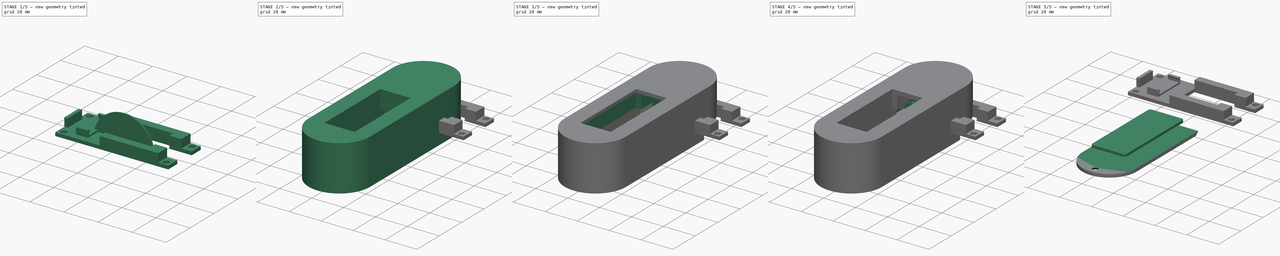
[diagram: build sequence overview — one tinted view per stage of 5, left to right]
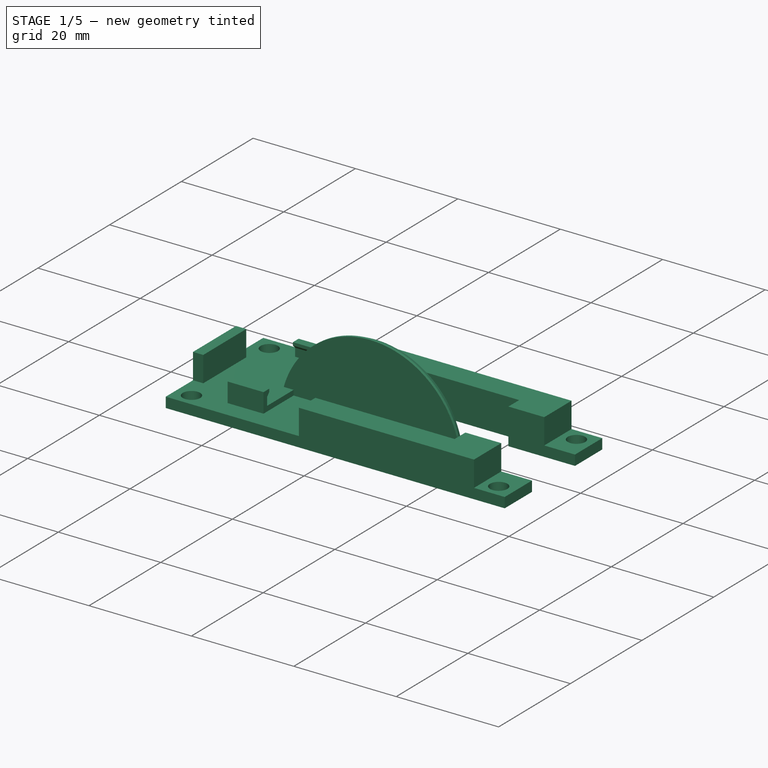
[diagram: stage 1 of 5 — iso view after this stage's code; geometry added in this stage tinted green]
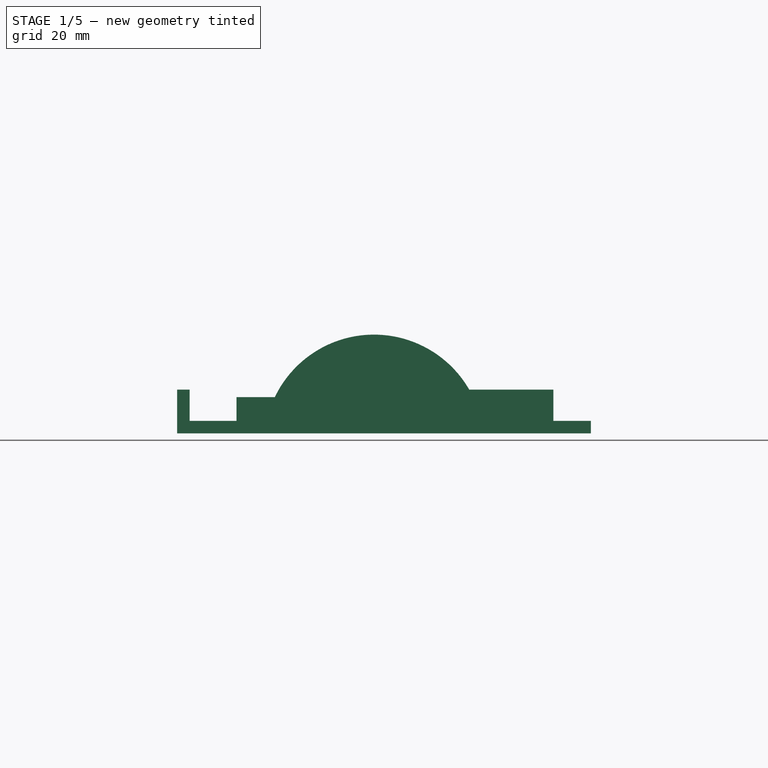
[diagram: stage 1 of 5 — front view after this stage's code; geometry added in this stage tinted green]
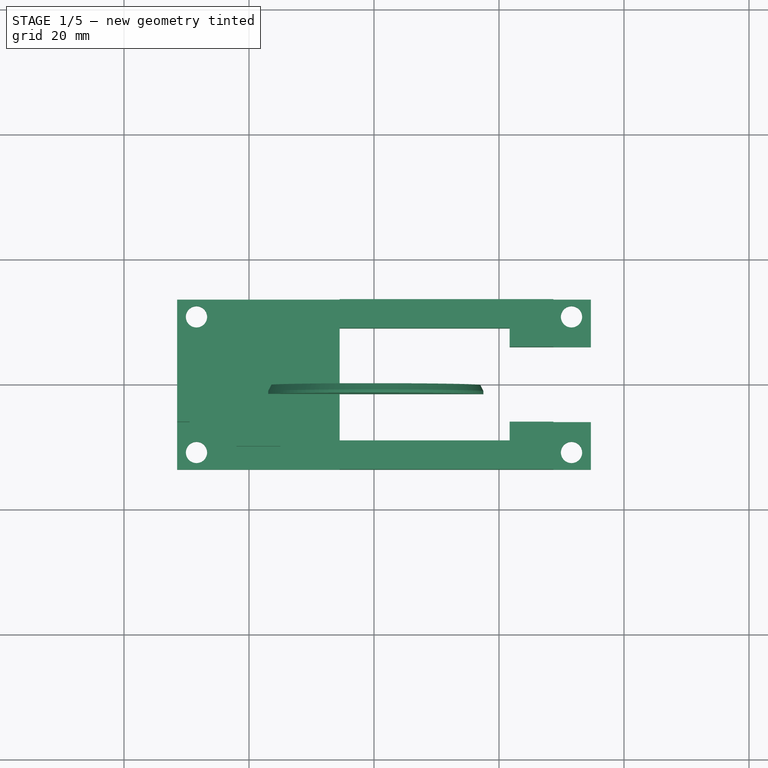
[diagram: stage 1 of 5 — top view after this stage's code; geometry added in this stage tinted green]
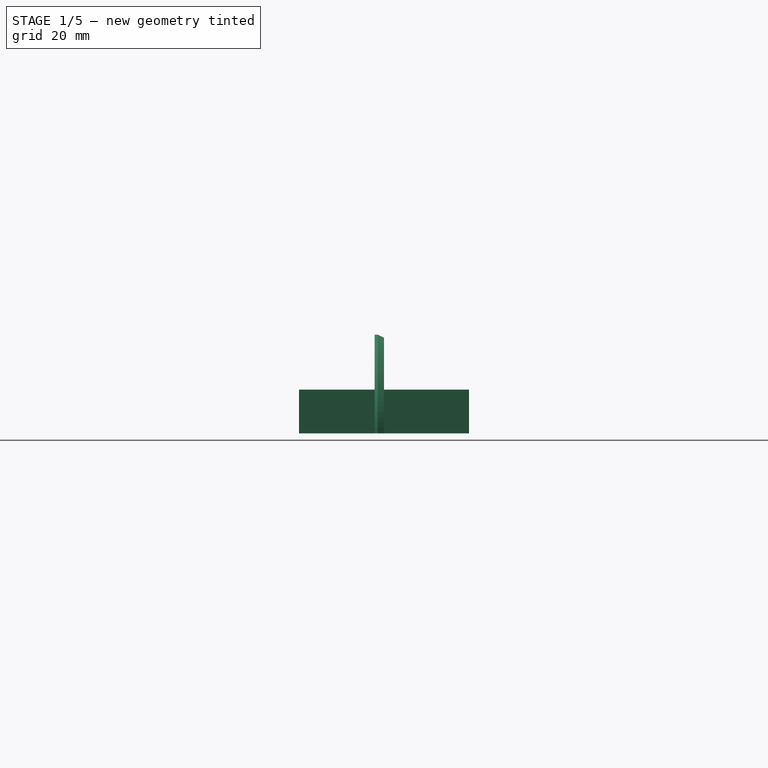
[diagram: stage 1 of 5 — right view after this stage's code; geometry added in this stage tinted green]
FCSTD DOCUMENT  (FreeCAD 1.0R39319 (Git))
Label: Brennstuhl_WallPlug
License: All rights reserved
LicenseURL: https://en.wikipedia.org/wiki/All_rights_reserved
objects: Sketcher::SketchObject×25, PartDesign::Pocket×12, PartDesign::Pad×9, PartDesign::SubShapeBinder×6, PartDesign::Body×5, PartDesign::Plane×4, PartDesign::Hole×4, PartDesign::Chamfer×2, PartDesign::Mirrored×1, Spreadsheet::Sheet×1, Measure::MeasureDistance×1, App::DocumentObjectGroup×1
note: 148 computed .brp shape members not serialized (recipe doc carries the construction recipe); baked Part::Feature solids carry a one-line shape summary decoded from their .brp

FEATURE [Sketcher::SketchObject] Sketch
  ArcFitTolerance = 1e-06
  AttachmentSupport = -> [XZ_Plane]
  FullyConstrained = true
  MakeInternals = false
  MapMode = 5
  Placement = pos=(0,0,0) rot=(1,0,0;1.5708rad)
  expr: Constraints[3] = <<config>>.bridge_clamp_diam
  expr: Constraints[5] = <<config>>.bridge_clamp_height
  sketch-geometry (3):
    g0: ArcOfCircle CenterX=0 CenterY=-1.79146 CenterZ=0 NormalX=0 NormalY=0 NormalZ=1 AngleXU=0 Radius=17.5915 StartAngle=0.102014 EndAngle=3.03958
    g1: GeomPoint X=0 Y=15.8 Z=0
    g2: LineSegment StartX=-17.5 StartY=1.157e-13 StartZ=0 EndX=17.5 EndY=1.177e-13 EndZ=0
  constraints (9):
    c: PointOnObject(g0,g-1)
    c: PointOnObject(g0,g-2)
    c: PointOnObject(g0,g-1)
    c: DistanceX(g0,g0) = 35
    c: PointOnObject(g1,g-2)
    c: DistanceY(g-1,g1) = 15.8
    c: PointOnObject(g1,g0)
    c: Coincident(g2,g0)
    c: Coincident(g2,g0)
FEATURE [PartDesign::Pad] Pad
  Direction = (0,-1,2e-16)
  Length = 1.5
  Length2 = 10
  Placement = pos=(0,0,0) rot=(1,0,0;1.5708rad)
  Profile = -> Sketch
  ReferenceAxis = -> Sketch [N_Axis]
  Refine = true
  Suppressed = false
  Type = 0
  expr: Length = <<config>>.bridge_thickness / 2
FEATURE [PartDesign::Chamfer] Chamfer
  Angle = 45
  Base = -> Pad [Edge3]
  BaseFeature = -> Pad
  ChamferType = 1
  FlipDirection = false
  Placement = pos=(0,0,0) rot=(1,0,0;1.5708rad)
  Refine = true
  Size = 1
  Size2 = 0.5
  SupportTransform = false
  Suppressed = false
  UseAllEdges = false
FEATURE [PartDesign::Body] Body003  label="AcrylBody"
  AllowCompound = false
  Group = -> [Binder004,Sketch021,Pad004]
  Origin = -> Origin003
  Tip = -> Pad004
FEATURE [Measure::MeasureDistance] Distance  label="Distance: 28,50 mm"
  Distance = 28.5
  DistanceX = 0
  DistanceY = 0
  DistanceZ = 28.5
  Element1 = -> Body001 [Chamfer001.Vertex73]
  Element2 = -> Body001 [Chamfer001.Vertex31]
  Position1 = (18.25,-75.1,21.5)
  Position2 = (18.25,-75.1,-7)
FEATURE [App::DocumentObjectGroup] Measurements
  Group = -> [Distance]
FEATURE [PartDesign::SubShapeBinder] Binder005
  BindCopyOnChange = 0
  BindMode = 0
  ClaimChildren = false
  Context = -> Body004 [Binder005.]
  Fuse = false
  MakeFace = true
  OffsetFill = false
  OffsetIntersection = false
  OffsetJoinType = 0
  OffsetOpenResult = false
  PartialLoad = false
  Refine = true
  Relative = true
  Support = -> [Sketch003]
  _Version = 2
FEATURE [Sketcher::SketchObject] Sketch022
  ArcFitTolerance = 1e-06
  AttachmentSupport = -> [XY_Plane004]
  ExternalGeometry = -> [Binder005]
  FullyConstrained = true
  MakeInternals = false
  MapMode = 5
  sketch-geometry (18):
    g0: Circle CenterX=31.6 CenterY=10.85 CenterZ=0 NormalX=0 NormalY=0 NormalZ=1 AngleXU=0 Radius=1.7
    g1: Circle CenterX=31.6 CenterY=-10.85 CenterZ=0 NormalX=0 NormalY=0 NormalZ=1 AngleXU=0 Radius=1.7
    g2: Circle CenterX=-28.4 CenterY=10.85 CenterZ=0 NormalX=0 NormalY=0 NormalZ=1 AngleXU=0 Radius=1.7
    g3: Circle CenterX=-28.4 CenterY=-10.85 CenterZ=0 NormalX=0 NormalY=0 NormalZ=1 AngleXU=0 Radius=1.7
    g4: LineSegment StartX=-31.5 StartY=-13.6 StartZ=0 EndX=34.7 EndY=-13.6 EndZ=0
    g5: LineSegment StartX=34.7 StartY=-13.6 StartZ=0 EndX=34.7 EndY=-6 EndZ=0
    g6: LineSegment StartX=34.7 StartY=13.6 StartZ=0 EndX=-31.5 EndY=13.6 EndZ=0
    g7: LineSegment StartX=-31.5 StartY=13.6 StartZ=0 EndX=-31.5 EndY=-13.6 EndZ=0
    g8: GeomPoint [constr] X=1.6 Y=5e-16 Z=0
    g9: LineSegment StartX=-5.5 StartY=9 StartZ=0 EndX=-5.5 EndY=-9 EndZ=0
    g10: LineSegment StartX=-5.5 StartY=-9 StartZ=0 EndX=21.7 EndY=-9 EndZ=0
    g11: LineSegment StartX=21.7 StartY=-9 StartZ=0 EndX=21.7 EndY=-6 EndZ=0
    g12: LineSegment StartX=21.7 StartY=9 StartZ=0 EndX=-5.5 EndY=9 EndZ=0
    g13: GeomPoint [constr] X=8.1 Y=0 Z=0
    g14: LineSegment StartX=34.7 StartY=6 StartZ=0 EndX=21.7 EndY=6 EndZ=0
    g15: LineSegment StartX=34.7 StartY=-6 StartZ=0 EndX=21.7 EndY=-6 EndZ=0
    g16: LineSegment StartX=34.7 StartY=6 StartZ=0 EndX=34.7 EndY=13.6 EndZ=0
    g17: LineSegment StartX=21.7 StartY=6 StartZ=0 EndX=21.7 EndY=9 EndZ=0
  constraints (45):
    c: Coincident(g0,g-5)
    c: Equal(g0,g-5)
    c: Coincident(g1,g-6)
    c: Equal(g1,g-6)
    c: Coincident(g2,g-3)
    c: Equal(g2,g-3)
    c: Coincident(g3,g-4)
    c: Equal(g3,g-4)
    c: Coincident(g4,g5)
    c: Coincident(g16,g6)
    c: Coincident(g6,g7)
    c: Coincident(g7,g4)
    c: Horizontal(g4)
    c: Horizontal(g6)
    c: Vertical(g5)
    c: Vertical(g7)
    c: Symmetric(g6,g4,g8)
    c: Coincident(g16,g-7)
    c: Coincident(g4,g-8)
    c: Coincident(g9,g10)
    c: Coincident(g10,g11)
    c: Coincident(g17,g12)
    c: Coincident(g12,g9)
    c: Vertical(g9)
    c: Vertical(g11)
    c: Horizontal(g10)
    c: Horizontal(g12)
    c: Symmetric(g11,g9,g13)
    c: PointOnObject(g13,g-1)
    c: PointOnObject(g14,g16)
    c: PointOnObject(g14,g17)
    c: Horizontal(g14)
    c: Horizontal(g15)
    c: Symmetric(g14,g15,g-1)
    c: PointOnObject(g16,g14)
    c: Coincident(g11,g15)
    c: PointOnObject(g17,g14)
    c: DistanceY(g5,g14) = 12
    c: DistanceY(g9,g9) = 18
    c: DistanceX(g4,g9) = 26
    c: DistanceX(g15,g15) = 13
    c: Equal(g15,g14)
    c: Vertical(g17)
    c: Vertical(g16)
    c: Coincident(g5,g15)
FEATURE [PartDesign::Pad] Pad005
  Direction = (0,0,1)
  Length = 2
  Length2 = 10
  Profile = -> Sketch022
  ReferenceAxis = -> Sketch022 [N_Axis]
  Refine = true
  Suppressed = false
  Type = 0
FEATURE [Sketcher::SketchObject] Sketch023
  ArcFitTolerance = 1e-06
  AttachmentSupport = -> [XY_Plane004]
  ExternalGeometry = -> [Pad005]
  FullyConstrained = true
  MakeInternals = false
  MapMode = 5
  sketch-geometry (12):
    g0: LineSegment StartX=-5.5 StartY=9 StartZ=0 EndX=-5.5 EndY=13.6 EndZ=0
    g1: LineSegment StartX=-5.5 StartY=13.6 StartZ=0 EndX=28.7 EndY=13.6 EndZ=0
    g2: LineSegment StartX=28.7 StartY=13.6 StartZ=0 EndX=28.7 EndY=6 EndZ=0
    g3: LineSegment StartX=28.7 StartY=6 StartZ=0 EndX=21.7 EndY=6 EndZ=0
    g4: LineSegment StartX=21.7 StartY=6 StartZ=0 EndX=21.7 EndY=9 EndZ=0
    g5: LineSegment StartX=21.7 StartY=9 StartZ=0 EndX=-5.5 EndY=9 EndZ=0
    g6: LineSegment StartX=-5.5 StartY=-9 StartZ=0 EndX=-5.5 EndY=-13.6 EndZ=0
    g7: LineSegment StartX=-5.5 StartY=-13.6 StartZ=0 EndX=28.7 EndY=-13.6 EndZ=0
    g8: LineSegment StartX=28.7 StartY=-13.6 StartZ=0 EndX=28.7 EndY=-6 EndZ=0
    g9: LineSegment StartX=28.7 StartY=-6 StartZ=0 EndX=21.7 EndY=-6 EndZ=0
    g10: LineSegment StartX=21.7 StartY=-6 StartZ=0 EndX=21.7 EndY=-9 EndZ=0
    g11: LineSegment StartX=21.7 StartY=-9 StartZ=0 EndX=-5.5 EndY=-9 EndZ=0
  constraints (30):
    c: Coincident(g-3,g0)
    c: PointOnObject(g0,g-5)
    c: Vertical(g0)
    c: Coincident(g0,g1)
    c: PointOnObject(g1,g-5)
    c: Coincident(g1,g2)
    c: PointOnObject(g2,g-4)
    c: Coincident(g2,g3)
    c: Coincident(g3,g-4)
    c: Coincident(g3,g4)
    c: Coincident(g4,g-3)
    c: Coincident(g4,g5)
    c: Coincident(g5,g0)
    c: Vertical(g2)
    c: DistanceX(g1,g-5) = 6
    c: Vertical(g6)
    c: Coincident(g6,g7)
    c: Coincident(g7,g8)
    c: Coincident(g8,g9)
    c: Coincident(g9,g10)
    c: Coincident(g10,g11)
    c: Coincident(g11,g6)
    c: Vertical(g8)
    c: Coincident(g6,g-7)
    c: Coincident(g10,g-7)
    c: PointOnObject(g6,g-6)
    c: PointOnObject(g7,g-6)
    c: Horizontal(g9)
    c: Coincident(g9,g-8)
    c: Equal(g3,g9)
FEATURE [PartDesign::Pad] Pad006
  BaseFeature = -> Pad005
  Direction = (0,0,1)
  Length = 7
  Length2 = 10
  Profile = -> Sketch023
  ReferenceAxis = -> Sketch023 [N_Axis]
  Refine = true
  Suppressed = false
  Type = 0
FEATURE [Sketcher::SketchObject] Sketch024
  ArcFitTolerance = 1e-06
  AttachmentOffset = pos=(0,0,-15) rot=(0,0,1;0rad)
  AttachmentSupport = -> [YZ_Plane004]
  FullyConstrained = true
  MakeInternals = false
  MapMode = 5
  Placement = pos=(-15,0,0) rot=(0.57735,0.57735,0.57735;2.0944rad)
  expr: Constraints[29] = 90 + 45
  sketch-geometry (12):
    g0: LineSegment StartX=9.9 StartY=0 StartZ=0 EndX=9.9 EndY=5.8 EndZ=0
    g1: LineSegment StartX=8.3 StartY=5.2 StartZ=0 EndX=8.9 EndY=4.6 EndZ=0
    g2: LineSegment StartX=8.9 StartY=4.6 StartZ=0 EndX=8.9 EndY=3 EndZ=0
    g3: LineSegment StartX=8.9 StartY=3 StartZ=0 EndX=-8.9 EndY=3 EndZ=0
    g4: LineSegment StartX=-8.9 StartY=3 StartZ=0 EndX=-8.9 EndY=4.6 EndZ=0
    g5: LineSegment StartX=-8.9 StartY=4.6 StartZ=0 EndX=-8.3 EndY=5.2 EndZ=0
    g6: LineSegment StartX=-9.9 StartY=5.8 StartZ=0 EndX=-9.9 EndY=0 EndZ=0
    g7: LineSegment StartX=-9.9 StartY=0 StartZ=0 EndX=9.9 EndY=0 EndZ=0
    g8: LineSegment StartX=9.9 StartY=5.8 StartZ=0 EndX=8.3 EndY=5.8 EndZ=0
    g9: LineSegment StartX=8.3 StartY=5.8 StartZ=0 EndX=8.3 EndY=5.2 EndZ=0
    g10: LineSegment StartX=-8.3 StartY=5.2 StartZ=0 EndX=-8.3 EndY=5.8 EndZ=0
    g11: LineSegment StartX=-8.3 StartY=5.8 StartZ=0 EndX=-9.9 EndY=5.8 EndZ=0
  constraints (32):
    c: PointOnObject(g0,g-1)
    c: Vertical(g0)
    c: Coincident(g1,g2)
    c: Vertical(g2)
    c: Coincident(g2,g3)
    c: Coincident(g3,g4)
    c: Coincident(g4,g5)
    c: PointOnObject(g6,g-1)
    c: Vertical(g6)
    c: Coincident(g6,g7)
    c: Coincident(g7,g0)
    c: Symmetric(g1,g5,g-2)
    c: Symmetric(g1,g4,g-2)
    c: Symmetric(g2,g3,g-2)
    c: Symmetric(g6,g0,g-2)
    c: DistanceY(g-1,g2) = 3
    c: DistanceX(g3,g3) = 17.8
    c: DistanceX(g2,g0) = 1
    c: DistanceY(g2,g2) = 1.6
    c: Coincident(g0,g8)
    c: Horizontal(g8)
    c: Coincident(g8,g9)
    c: Coincident(g9,g1)
    c: Vertical(g9)
    c: Coincident(g5,g10)
    c: Vertical(g10)
    c: Coincident(g10,g11)
    c: Coincident(g11,g6)
    c: Horizontal(g11)
    c: Angle(g1,g9) = 2.35619
    c: DistanceY(g9,g9) = 0.6
    c: DistanceX(g1,g1) = 0.6
FEATURE [PartDesign::Pad] Pad007
  BaseFeature = -> Pad006
  Direction = (1,0,0)
  Length = 7
  Length2 = -10
  Profile = -> Sketch024
  ReferenceAxis = -> Sketch024 [N_Axis]
  Refine = true
  Reversed = true
  Suppressed = false
  Type = 0
  expr: Length2 = -10 mm
FEATURE [Sketcher::SketchObject] Sketch025
  ArcFitTolerance = 1e-06
  AttachmentSupport = -> [Pad007]
  ExternalGeometry = -> [Pad007]
  FullyConstrained = true
  MakeInternals = false
  MapMode = 5
  Placement = pos=(0,0,2) rot=(0,0,1;0rad)
  sketch-geometry (5):
    g0: LineSegment StartX=-29.5 StartY=-6 StartZ=0 EndX=-29.5 EndY=6 EndZ=0
    g1: LineSegment StartX=-29.5 StartY=6 StartZ=0 EndX=-31.5 EndY=6 EndZ=0
    g2: LineSegment StartX=-31.5 StartY=6 StartZ=0 EndX=-31.5 EndY=-6 EndZ=0
    g3: LineSegment StartX=-31.5 StartY=-6 StartZ=0 EndX=-29.5 EndY=-6 EndZ=0
    g4: GeomPoint [constr] X=-30.5 Y=0 Z=0
  constraints (13):
    c: Coincident(g0,g1)
    c: Coincident(g1,g2)
    c: Coincident(g2,g3)
    c: Coincident(g3,g0)
    c: Vertical(g0)
    c: Vertical(g2)
    c: Horizontal(g1)
    c: Horizontal(g3)
    c: Symmetric(g2,g0,g4)
    c: DistanceX(g1,g1) = 2
    c: PointOnObject(g1,g-3)
    c: DistanceY(g2,g2) = 12
    c: PointOnObject(g4,g-1)
FEATURE [PartDesign::Pad] Pad008
  BaseFeature = -> Pad007
  Direction = (0,0,1)
  Length = 5
  Length2 = 10
  Profile = -> Sketch025
  ReferenceAxis = -> Sketch025 [N_Axis]
  Refine = true
  Suppressed = false
  Type = 0
FEATURE [PartDesign::Body] Body004  label="ESPHolderBody"
  AllowCompound = false
  Group = -> [Binder005,Sketch022,Pad005,Sketch023,Pad006,Sketch024,Pad007,Sketch025,Pad008]
  Origin = -> Origin004
  Tip = -> Pad008
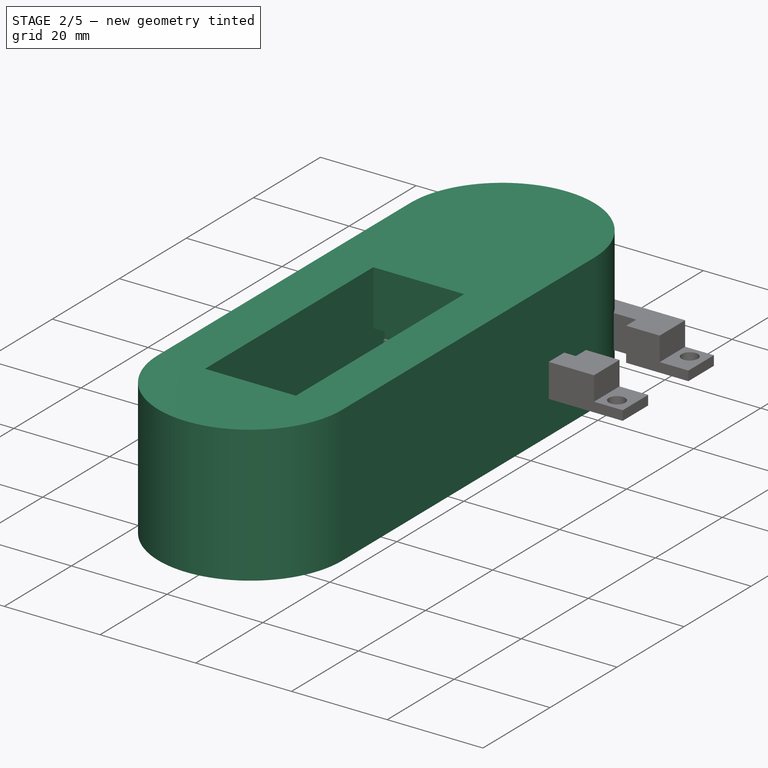
[diagram: stage 2 of 5 — iso view after this stage's code; geometry added in this stage tinted green]
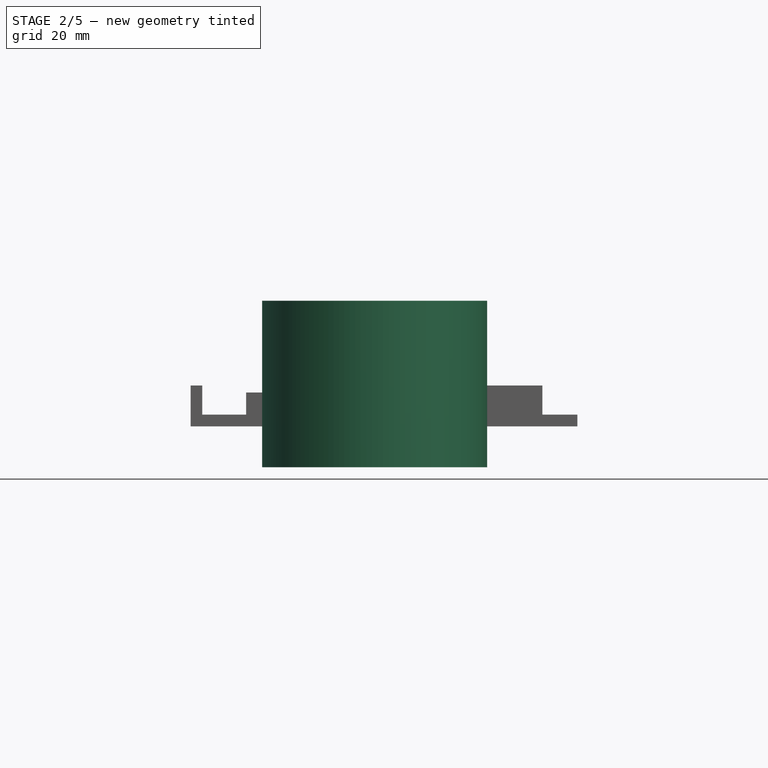
[diagram: stage 2 of 5 — front view after this stage's code; geometry added in this stage tinted green]
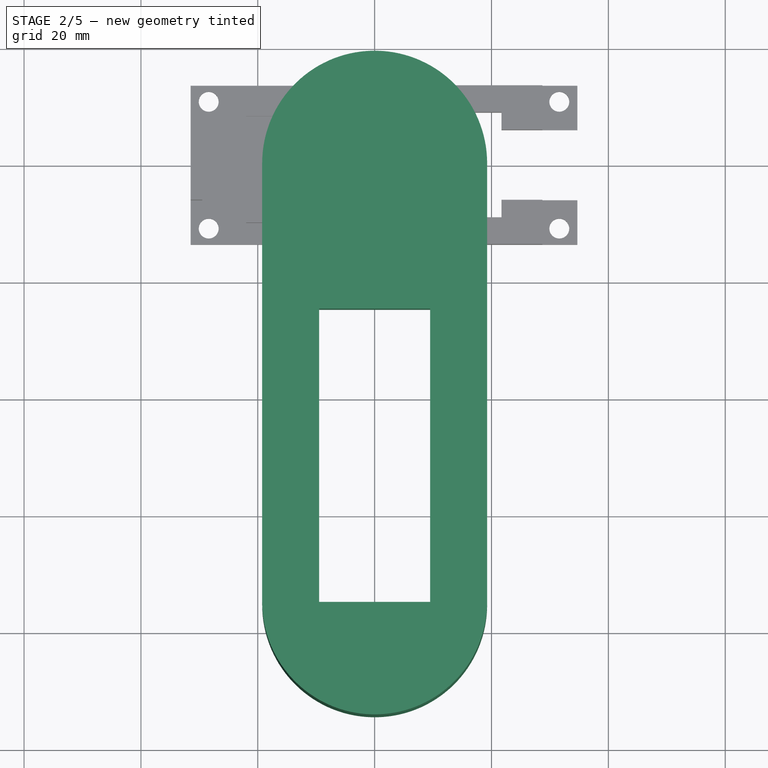
[diagram: stage 2 of 5 — top view after this stage's code; geometry added in this stage tinted green]
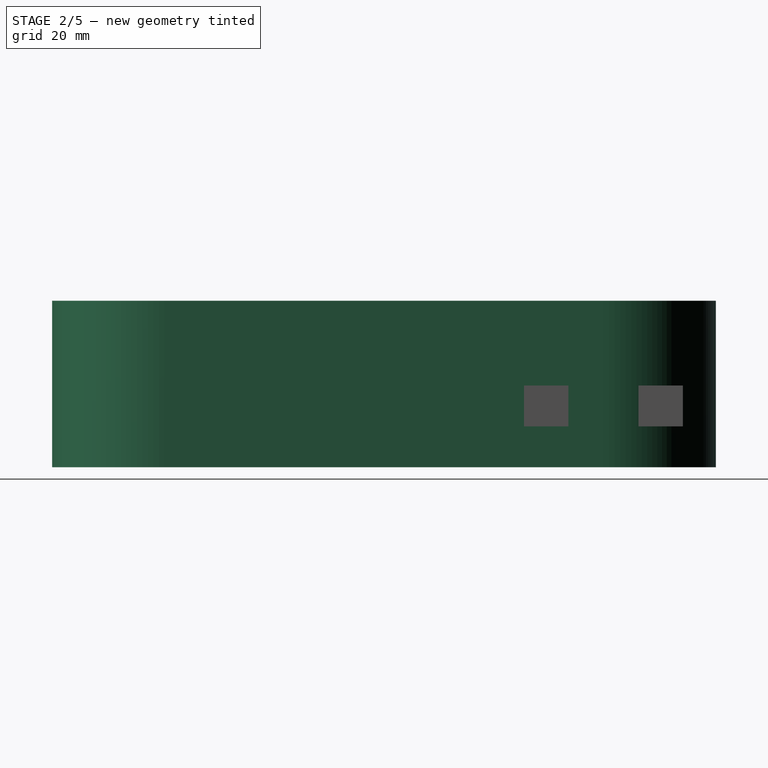
[diagram: stage 2 of 5 — right view after this stage's code; geometry added in this stage tinted green]
FEATURE [PartDesign::Mirrored] Mirrored
  BaseFeature = -> Chamfer
  MirrorPlane = -> XZ_Plane
  Originals = -> [Pad,Chamfer]
  Placement = pos=(0,0,0) rot=(1,0,0;1.5708rad)
  Refine = true
  Suppressed = false
  TransformMode = 0
FEATURE [Sketcher::SketchObject] Sketch001
  ArcFitTolerance = 1e-06
  AttachmentSupport = -> [XZ_Plane]
  FullyConstrained = true
  MakeInternals = false
  MapMode = 5
  Placement = pos=(0,0,0) rot=(1,0,0;1.5708rad)
  sketch-geometry (2):
    g0: Circle CenterX=-7.5 CenterY=7 CenterZ=0 NormalX=0 NormalY=0 NormalZ=1 AngleXU=0 Radius=2
    g1: Circle CenterX=7.5 CenterY=7 CenterZ=0 NormalX=0 NormalY=0 NormalZ=1 AngleXU=0 Radius=2
  constraints (5):
    c: Equal(g0,g1)
    c: Symmetric(g0,g1,g-2)
    c: DistanceY(g-1,g1) = 7
    c: DistanceX(g0,g1) = 15
    c: Diameter(g0) = 4
FEATURE [PartDesign::Pocket] Pocket
  BaseFeature = -> Mirrored
  Direction = (0,1,-2e-16)
  Length = 5
  Length2 = 5
  Midplane = true
  Placement = pos=(0,0,0) rot=(1,0,0;1.5708rad)
  Profile = -> Sketch001
  ReferenceAxis = -> Sketch001 [N_Axis]
  Refine = true
  Suppressed = false
  Type = 1
FEATURE [Sketcher::SketchObject] Sketch002
  ArcFitTolerance = 1e-06
  AttachmentSupport = -> [XZ_Plane]
  ExternalGeometry = -> [Pocket]
  FullyConstrained = true
  MakeInternals = false
  MapMode = 5
  Placement = pos=(0,0,0) rot=(1,0,0;1.5708rad)
  sketch-geometry (7):
    g0: ArcOfCircle CenterX=0 CenterY=-1.79146 CenterZ=0 NormalX=0 NormalY=0 NormalZ=1 AngleXU=0 Radius=17.0915 StartAngle=0.792447 EndAngle=2.34915
    g1: LineSegment [constr] StartX=-12 StartY=10.3789 StartZ=0 EndX=12 EndY=10.3789 EndZ=0
    g2: LineSegment StartX=19 StartY=18.3789 StartZ=0 EndX=-19 EndY=18.3789 EndZ=0
    g3: LineSegment StartX=-19 StartY=18.3789 StartZ=0 EndX=-19 EndY=10.3789 EndZ=0
    g4: LineSegment StartX=-19 StartY=10.3789 StartZ=0 EndX=-12 EndY=10.3789 EndZ=0
    g5: LineSegment StartX=19 StartY=18.3789 StartZ=0 EndX=19 EndY=10.3789 EndZ=0
    g6: LineSegment StartX=19 StartY=10.3789 StartZ=0 EndX=12 EndY=10.3789 EndZ=0
  constraints (20):
    c: Coincident(g1,g0)
    c: Coincident(g1,g0)
    c: Horizontal(g1)
    c: Horizontal(g2)
    c: Coincident(g0,g-3)
    c: PointOnObject(g0,g-3)
    c: DistanceX(g1,g1) = 24
    c: Coincident(g2,g3)
    c: Vertical(g3)
    c: Coincident(g3,g4)
    c: Coincident(g4,g0)
    c: Coincident(g2,g5)
    c: Vertical(g5)
    c: Coincident(g5,g6)
    c: Coincident(g6,g0)
    c: Horizontal(g4)
    c: Horizontal(g6)
    c: Equal(g4,g6)
    c: DistanceX(g2,g2) = 38
    c: DistanceY(g5,g5) = 8
FEATURE [PartDesign::Pocket] Pocket001
  BaseFeature = -> Pocket
  Direction = (0,1,-2e-16)
  Length = 5
  Length2 = 5
  Placement = pos=(0,0,0) rot=(1,0,0;1.5708rad)
  Profile = -> Sketch002
  ReferenceAxis = -> Sketch002 [N_Axis]
  Refine = true
  Suppressed = false
  Type = 0
FEATURE [PartDesign::Body] Body  label="BridgeBody"
  AllowCompound = false
  Group = -> [Sketch,Pad,Chamfer,Mirrored,Sketch001,Pocket,Sketch002,Pocket001]
  Origin = -> Origin
  Tip = -> Pocket001
FEATURE [Sketcher::SketchObject] Sketch003  label="DisplaySketch"
  ArcFitTolerance = 1e-06
  FullyConstrained = true
  MakeInternals = false
  sketch-geometry (20):
    g0: LineSegment StartX=-25.1 StartY=9.5 StartZ=0 EndX=-25.1 EndY=-9.5 EndZ=0
    g1: LineSegment StartX=-25.1 StartY=-9.5 StartZ=0 EndX=25.1 EndY=-9.5 EndZ=0
    g2: LineSegment StartX=25.1 StartY=-9.5 StartZ=0 EndX=25.1 EndY=9.5 EndZ=0
    g3: LineSegment StartX=25.1 StartY=9.5 StartZ=0 EndX=-25.1 EndY=9.5 EndZ=0
    g4: GeomPoint [constr] X=0 Y=0 Z=0
    g5: LineSegment StartX=-31.5 StartY=13.6 StartZ=0 EndX=-31.5 EndY=-13.6 EndZ=0
    g6: LineSegment StartX=-31.5 StartY=-13.6 StartZ=0 EndX=34.7 EndY=-13.6 EndZ=0
    g7: LineSegment StartX=34.7 StartY=-13.6 StartZ=0 EndX=34.7 EndY=13.6 EndZ=0
    g8: LineSegment StartX=34.7 StartY=13.6 StartZ=0 EndX=-31.5 EndY=13.6 EndZ=0
    g9: GeomPoint [constr] X=1.6 Y=0 Z=0
    g10: Circle CenterX=-28.4 CenterY=10.85 CenterZ=0 NormalX=0 NormalY=0 NormalZ=1 AngleXU=0 Radius=1.7
    g11: GeomPoint X=1.6 Y=13.6 Z=0
    g12: LineSegment [constr] StartX=1.6 StartY=13.6 StartZ=0 EndX=1.6 EndY=-13.6 EndZ=0
    g13: LineSegment [constr] StartX=-28.4 StartY=10.85 StartZ=0 EndX=-28.4 EndY=-10.85 EndZ=0
    g14: LineSegment [constr] StartX=-28.4 StartY=-10.85 StartZ=0 EndX=31.6 EndY=-10.85 EndZ=0
    g15: LineSegment [constr] StartX=31.6 StartY=-10.85 StartZ=0 EndX=31.6 EndY=10.85 EndZ=0
    g16: LineSegment [constr] StartX=31.6 StartY=10.85 StartZ=0 EndX=-28.4 EndY=10.85 EndZ=0
    g17: Circle CenterX=-28.4 CenterY=-10.85 CenterZ=0 NormalX=0 NormalY=0 NormalZ=1 AngleXU=0 Radius=1.7
    g18: Circle CenterX=31.6 CenterY=-10.85 CenterZ=0 NormalX=0 NormalY=0 NormalZ=1 AngleXU=0 Radius=1.7
    g19: Circle CenterX=31.6 CenterY=10.85 CenterZ=0 NormalX=0 NormalY=0 NormalZ=1 AngleXU=0 Radius=1.7
  constraints (46):
    c: Coincident(g0,g1)
    c: Coincident(g1,g2)
    c: Coincident(g2,g3)
    c: Coincident(g3,g0)
    c: Vertical(g0)
    c: Vertical(g2)
    c: Horizontal(g1)
    c: Horizontal(g3)
    c: Symmetric(g2,g0,g4)
    c: Coincident(g4,g-1)
    c: Coincident(g5,g6)
    c: Coincident(g6,g7)
    c: Coincident(g7,g8)
    c: Coincident(g8,g5)
    c: Vertical(g5)
    c: Vertical(g7)
    c: Horizontal(g6)
    c: Horizontal(g8)
    c: Symmetric(g7,g5,g9)
    c: PointOnObject(g9,g-1)
    c: DistanceY(g2,g2) = 19
    c: DistanceX(g1,g1) = 50.2
    c: DistanceY(g7,g7) = 27.2
    c: DistanceX(g6,g6) = 66.2
    c: DistanceX(g1,g6) = 9.6
    c: Diameter(g10) = 3.4
    c: Symmetric(g5,g7,g11)
    c: Coincident(g12,g11)
    c: Symmetric(g6,g6,g12)
    c: Coincident(g13,g14)
    c: Coincident(g14,g15)
    c: Coincident(g15,g16)
    c: Coincident(g16,g13)
    c: Vertical(g15)
    c: Horizontal(g14)
    c: Coincident(g13,g10)
    c: DistanceY(g13,g13) = 21.7
    c: Coincident(g17,g13)
    c: Coincident(g18,g14)
    c: Coincident(g19,g15)
    c: Equal(g10,g19)
    c: Equal(g10,g17)
    c: Equal(g10,g18)
    c: DistanceX(g16,g16) = 60
    c: Symmetric(g10,g13,g-1)
    c: Symmetric(g10,g15,g12)
FEATURE [Spreadsheet::Sheet] Spreadsheet  label="config"
  cells = A1='display height; B1(disp_height)==8 mm; D1='inner height; E1(inner_height)==14.5 mm + 5 mm; A2='plug diameter; B2(plug_diam)==38.5 mm; D2='inner extra height; E2(inner_extra_height)==3 mm; A3='wall thickness; B3(wall_thickness)==4 mm; A4='top thickness; B4(top_thickness)==2 mm; A5='acryl thickness; B5(acryl_thickness)==1.5 mm; A6='acryl over; B6(acryl_overlap)==1.5 mm; A8='body extra height; B8(extra_height)==7 mm; A10='bridge thickness; B10(bridge_thickness)==3 mm; A11='bridge clamp diam; B11(bridge_clamp_diam)==35 mm; A12='bridge clamp height; B12(bridge_clamp_height)==15.8 mm; A14='plug socket height; B14(plug_socket_height)==5 mm; A16='cover thickness; B16(cover_thickness)==2 mm
FEATURE [PartDesign::Plane] DatumPlane  label="DisplayDatumPlane"
  AttachmentOffset = pos=(0,0,19.5) rot=(0,0,1;0rad)
  AttachmentSupport = -> [XY_Plane001]
  Length = 60
  MapMode = 5
  Placement = pos=(0,0,19.5) rot=(0,0,1;0rad)
  ResizeMode = 0
  Width = 60
  expr: .AttachmentOffset.Base.z = <<config>>.inner_height
FEATURE [PartDesign::SubShapeBinder] Binder
  BindCopyOnChange = 0
  BindMode = 0
  ClaimChildren = false
  Context = -> Body001 [Binder.]
  Fuse = false
  MakeFace = true
  OffsetFill = false
  OffsetIntersection = false
  OffsetJoinType = 0
  OffsetOpenResult = false
  PartialLoad = false
  Placement = pos=(0,-50,0) rot=(0,0,1;1.5708rad)
  Refine = true
  Relative = true
  Support = -> [Sketch003]
  _Version = 2
FEATURE [Sketcher::SketchObject] Sketch004
  ArcFitTolerance = 1e-06
  AttachmentSupport = -> [DatumPlane]
  ExternalGeometry = -> [Binder]
  FullyConstrained = true
  MakeInternals = false
  MapMode = 5
  Placement = pos=(0,0,19.5) rot=(0,0,1;0rad)
  expr: Constraints[6] = <<config>>.plug_diam
  sketch-geometry (11):
    g0: LineSegment StartX=-19.25 StartY=2.4e-15 StartZ=0 EndX=-19.25 EndY=-75.1 EndZ=0
    g1: LineSegment StartX=19.25 StartY=-75.1 StartZ=0 EndX=19.25 EndY=0 EndZ=0
    g2: LineSegment [constr] StartX=19.25 StartY=2.4e-15 StartZ=0 EndX=-19.25 EndY=2.4e-15 EndZ=0
    g3: GeomPoint [constr] X=-2e-16 Y=-37.55 Z=0
    g4: ArcOfCircle CenterX=0 CenterY=0 CenterZ=0 NormalX=0 NormalY=0 NormalZ=1 AngleXU=0 Radius=19.25 StartAngle=0 EndAngle=3.14159
    g5: LineSegment [constr] StartX=-19.25 StartY=-75.1 StartZ=0 EndX=19.25 EndY=-75.1 EndZ=0
    g6: ArcOfCircle CenterX=-3e-16 CenterY=-75.1 CenterZ=0 NormalX=0 NormalY=0 NormalZ=1 AngleXU=0 Radius=19.25 StartAngle=3.14159 EndAngle=6.28319
    g7: LineSegment StartX=-9.5 StartY=-24.9 StartZ=0 EndX=-9.5 EndY=-75.1 EndZ=0
    g8: LineSegment StartX=-9.5 StartY=-75.1 StartZ=0 EndX=9.5 EndY=-75.1 EndZ=0
    g9: LineSegment StartX=9.5 StartY=-75.1 StartZ=0 EndX=9.5 EndY=-24.9 EndZ=0
    g10: LineSegment StartX=9.5 StartY=-24.9 StartZ=0 EndX=-9.5 EndY=-24.9 EndZ=0
  constraints (28):
    c: Coincident(g1,g2)
    c: Coincident(g2,g0)
    c: Vertical(g0)
    c: Vertical(g1)
    c: Horizontal(g2)
    c: Symmetric(g1,g0,g3)
    c: Diameter(g4) = 38.5
    c: Coincident(g4,g-1)
    c: PointOnObject(g1,g-1)
    c: Coincident(g4,g0)
    c: Coincident(g4,g1)
    c: Coincident(g5,g0)
    c: Coincident(g5,g1)
    c: Horizontal(g5)
    c: Coincident(g6,g0)
    c: Coincident(g6,g1)
    c: PointOnObject(g6,g5)
    c: Coincident(g7,g8)
    c: Coincident(g8,g9)
    c: Coincident(g9,g10)
    c: Coincident(g10,g7)
    c: Vertical(g7)
    c: Vertical(g9)
    c: Horizontal(g8)
    c: Horizontal(g10)
    c: Coincident(g7,g-5)
    c: Coincident(g8,g-6)
    c: PointOnObject(g6,g8)
FEATURE [PartDesign::Pad] Pad001  label="MainPad001"
  Direction = (0,0,1)
  Length = 2
  Length2 = 26.5
  Placement = pos=(0,0,19.5) rot=(0,0,1;0rad)
  Profile = -> Sketch004
  ReferenceAxis = -> Sketch004 [N_Axis]
  Refine = true
  Suppressed = false
  Type = 4
  expr: Length = <<config>>.top_thickness
  expr: Length2 = <<config>>.inner_height + <<config>>.extra_height
FEATURE [PartDesign::Plane] DatumPlane001  label="PcbDatumPlane"
  AttachmentOffset = pos=(0,0,-9.5) rot=(0,0,1;0rad)
  AttachmentSupport = -> [DatumPlane]
  Length = 60
  MapMode = 5
  Placement = pos=(0,0,10) rot=(0,0,1;0rad)
  ResizeMode = 0
  Width = 60
  expr: .AttachmentOffset.Base.z = -(<<config>>.disp_height + <<config>>.acryl_thickness)
FEATURE [Sketcher::SketchObject] Sketch006  label="AcrylCutoutSketch"
  ArcFitTolerance = 1e-06
  AttachmentSupport = -> [DatumPlane,DatumPlane001]
  ExternalGeometry = -> [Binder]
  FullyConstrained = true
  MakeInternals = false
  MapMode = 5
  Placement = pos=(0,0,19.5) rot=(0,0,1;0rad)
  expr: Constraints[10] = <<config>>.acryl_overlap
  expr: Constraints[11] = <<config>>.acryl_overlap
  expr: Constraints[12] = <<config>>.acryl_overlap
  sketch-geometry (5):
    g0: LineSegment StartX=-11 StartY=-76.6 StartZ=0 EndX=11 EndY=-76.6 EndZ=0
    g1: LineSegment StartX=11 StartY=-76.6 StartZ=0 EndX=11 EndY=-23.4 EndZ=0
    g2: LineSegment StartX=11 StartY=-23.4 StartZ=0 EndX=-11 EndY=-23.4 EndZ=0
    g3: LineSegment StartX=-11 StartY=-23.4 StartZ=0 EndX=-11 EndY=-76.6 EndZ=0
    g4: GeomPoint [constr] X=0 Y=-50 Z=0
  constraints (13):
    c: Coincident(g0,g1)
    c: Coincident(g1,g2)
    c: Coincident(g2,g3)
    c: Coincident(g3,g0)
    c: Horizontal(g0)
    c: Horizontal(g2)
    c: Vertical(g1)
    c: Vertical(g3)
    c: Symmetric(g2,g0,g4)
    c: PointOnObject(g4,g-2)
    c: DistanceY(g-3,g1) = 1.5
    c: DistanceX(g-3,g1) = 1.5
    c: DistanceY(g0,g-4) = 1.5
FEATURE [Sketcher::SketchObject] Sketch007  label="CutoutSketch007"
  ArcFitTolerance = 1e-06
  AttachmentSupport = -> [DatumPlane001]
  ExternalGeometry = -> [Pad001,Binder,Sketch006]
  FullyConstrained = true
  MakeInternals = false
  MapMode = 5
  Placement = pos=(0,0,10) rot=(0,0,1;0rad)
  expr: Constraints[7] = <<config>>.wall_thickness
  sketch-geometry (7):
    g0: LineSegment [constr] StartX=-19.25 StartY=-75.1 StartZ=0 EndX=19.25 EndY=-75.1 EndZ=0
    g1: ArcOfCircle CenterX=-3e-16 CenterY=-75.1 CenterZ=0 NormalX=0 NormalY=0 NormalZ=1 AngleXU=0 Radius=15.25 StartAngle=3.14159 EndAngle=3.72494
    g2: LineSegment StartX=-12.728 StartY=-83.5 StartZ=0 EndX=12.728 EndY=-83.5 EndZ=0
    g3: ArcOfCircle CenterX=-3e-16 CenterY=-75.1 CenterZ=0 NormalX=0 NormalY=0 NormalZ=1 AngleXU=0 Radius=15.25 StartAngle=5.69984 EndAngle=6.28319
    g4: LineSegment StartX=-15.25 StartY=-75.1 StartZ=0 EndX=-15.25 EndY=-13.3 EndZ=0
    g5: LineSegment StartX=-15.25 StartY=-13.3 StartZ=0 EndX=15.25 EndY=-13.3 EndZ=0
    g6: LineSegment StartX=15.25 StartY=-13.3 StartZ=0 EndX=15.25 EndY=-75.1 EndZ=0
  constraints (20):
    c: Coincident(g0,g-4)
    c: Coincident(g0,g-4)
    c: Coincident(g1,g-4)
    c: PointOnObject(g3,g0)
    c: PointOnObject(g1,g0)
    c: PointOnObject(g2,g3)
    c: Horizontal(g2)
    c: DistanceX(g3,g0) = 4
    c: DistanceY(g2,g-8) = 2
    c: Equal(g1,g3)
    c: Coincident(g1,g2)
    c: PointOnObject(g3,g2)
    c: Coincident(g1,g3)
    c: Tangent(g1,g4) = 1.5708
    c: Coincident(g4,g5)
    c: Horizontal(g5)
    c: Coincident(g5,g6)
    c: Coincident(g6,g3)
    c: Vertical(g6)
    c: DistanceY(g-5,g5) = 2
FEATURE [PartDesign::Pocket] Pocket002  label="CutoutPocket002"
  BaseFeature = -> Pad001
  Direction = (0,0,-1)
  Length = 5
  Length2 = 5
  Placement = pos=(0,0,19.5) rot=(0,0,1;0rad)
  Profile = -> Sketch007
  ReferenceAxis = -> Sketch007 [N_Axis]
  Refine = true
  Suppressed = false
  Type = 1
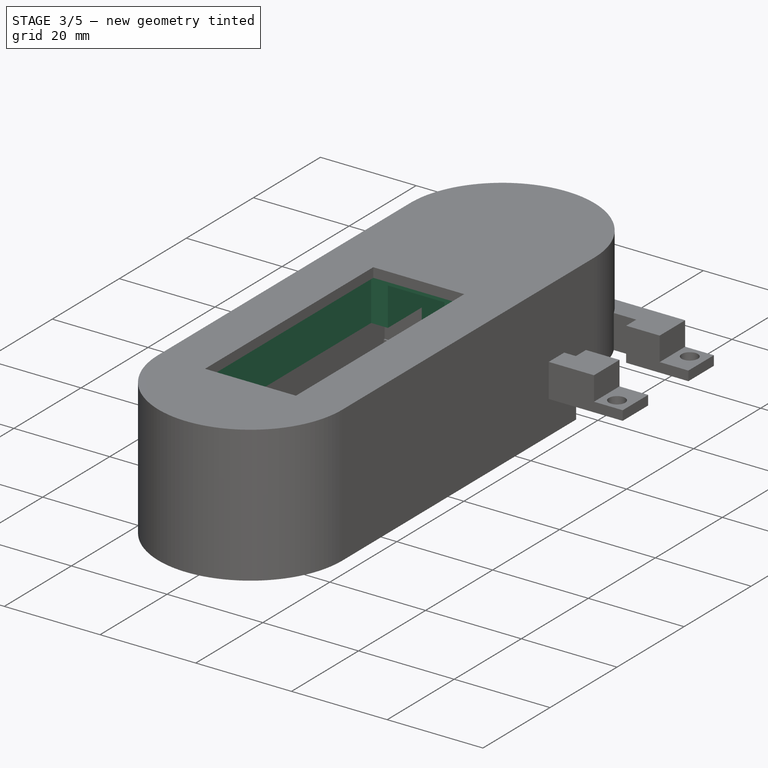
[diagram: stage 3 of 5 — iso view after this stage's code; geometry added in this stage tinted green]
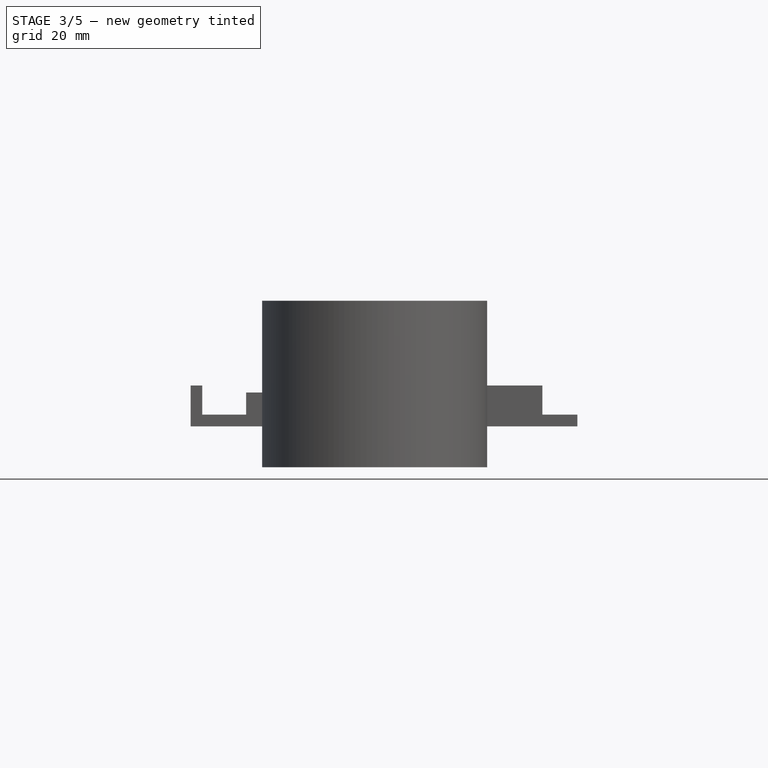
[diagram: stage 3 of 5 — front view after this stage's code; geometry added in this stage tinted green]
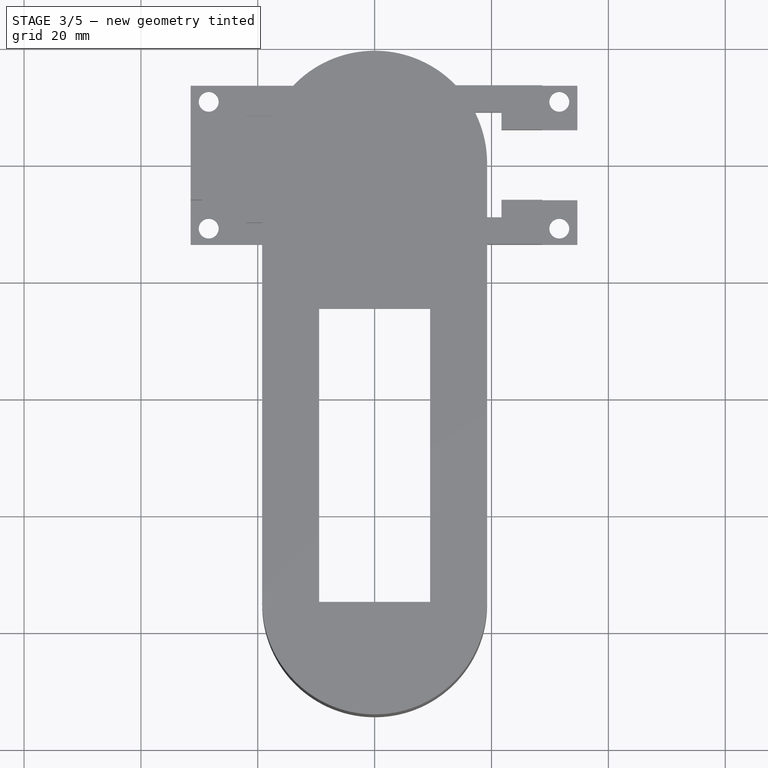
[diagram: stage 3 of 5 — top view after this stage's code; geometry added in this stage tinted green]
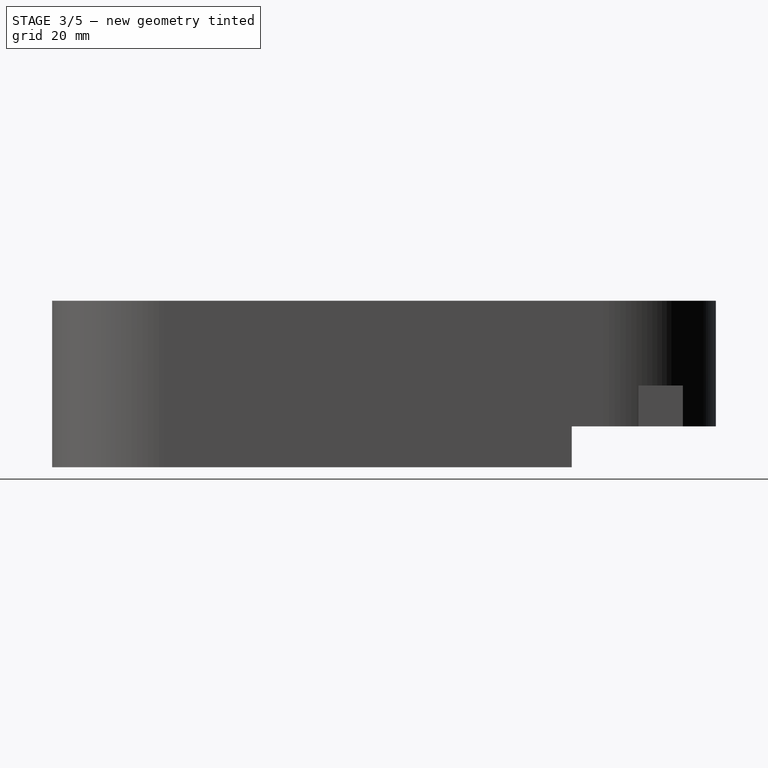
[diagram: stage 3 of 5 — right view after this stage's code; geometry added in this stage tinted green]
FEATURE [PartDesign::Pocket] Pocket003  label="AcrylPocket003"
  BaseFeature = -> Pocket002
  Direction = (0,0,-1)
  Length = 50
  Length2 = 1.5
  Placement = pos=(0,0,19.5) rot=(0,0,1;0rad)
  Profile = -> Sketch006
  ReferenceAxis = -> Sketch006 [N_Axis]
  Refine = true
  Suppressed = false
  Type = 1
  expr: Length2 = <<config>>.acryl_thickness
FEATURE [Sketcher::SketchObject] Sketch008  label="DisplayMountSketch008"
  ArcFitTolerance = 1e-06
  AttachmentSupport = -> [DatumPlane001]
  ExternalGeometry = -> [Binder]
  FullyConstrained = true
  MakeInternals = false
  MapMode = 5
  Placement = pos=(0,0,10) rot=(0,0,1;0rad)
  sketch-geometry (4):
    g0: Circle CenterX=-10.85 CenterY=-18.4 CenterZ=0 NormalX=0 NormalY=0 NormalZ=1 AngleXU=0 Radius=1.7
    g1: Circle CenterX=10.85 CenterY=-18.4 CenterZ=0 NormalX=0 NormalY=0 NormalZ=1 AngleXU=0 Radius=1.7
    g2: Circle CenterX=10.85 CenterY=-78.4 CenterZ=0 NormalX=0 NormalY=0 NormalZ=1 AngleXU=0 Radius=1.7
    g3: Circle CenterX=-10.85 CenterY=-78.4 CenterZ=0 NormalX=0 NormalY=0 NormalZ=1 AngleXU=0 Radius=1.7
  constraints (8):
    c: Coincident(g0,g-6)
    c: Equal(g0,g-6)
    c: Coincident(g1,g-5)
    c: Equal(g1,g-5)
    c: Coincident(g2,g-4)
    c: Equal(g2,g-4)
    c: Coincident(g3,g-3)
    c: Equal(g3,g-3)
FEATURE [PartDesign::Hole] Hole  label="DisplayMountHole"
  BaseFeature = -> Pocket003
  CustomThreadClearance = 0
  Depth = 8
  DepthType = 0
  Diameter = 2.52
  DrillForDepth = false
  DrillPoint = 1
  DrillPointAngle = 118
  HoleCutCountersinkAngle = 90
  HoleCutCustomValues = false
  HoleCutDepth = 0
  HoleCutDiameter = 6.1
  HoleCutType = 0
  ModelThread = true
  Placement = pos=(0,0,19.5) rot=(0,0,1;0rad)
  Profile = -> Sketch008
  Refine = true
  Reversed = true
  Suppressed = false
  Tapered = false
  TaperedAngle = 90
  ThreadClass = 0
  ThreadDepth = 8
  ThreadDepthType = 0
  ThreadDirection = 0
  ThreadFit = 0
  ThreadSize = 9
  ThreadType = 1
  Threaded = true
  UseCustomThreadClearance = false
  expr: Depth = <<config>>.disp_height
FEATURE [Sketcher::SketchObject] Sketch009
  ArcFitTolerance = 1e-06
  AttachmentSupport = -> [DatumPlane001]
  ExternalGeometry = -> [Hole]
  FullyConstrained = true
  MakeInternals = false
  MapMode = 5
  Placement = pos=(0,0,10) rot=(0,0,1;0rad)
  sketch-geometry (5):
    g0: LineSegment StartX=-7.5 StartY=-16.4 StartZ=0 EndX=-7.5 EndY=-80.4 EndZ=0
    g1: LineSegment StartX=-7.5 StartY=-80.4 StartZ=0 EndX=7.5 EndY=-80.4 EndZ=0
    g2: LineSegment StartX=7.5 StartY=-80.4 StartZ=0 EndX=7.5 EndY=-16.4 EndZ=0
    g3: LineSegment StartX=7.5 StartY=-16.4 StartZ=0 EndX=-7.5 EndY=-16.4 EndZ=0
    g4: GeomPoint [constr] X=1e-16 Y=-48.4 Z=0
  constraints (13):
    c: Coincident(g0,g1)
    c: Coincident(g1,g2)
    c: Coincident(g2,g3)
    c: Coincident(g3,g0)
    c: Vertical(g0)
    c: Vertical(g2)
    c: Horizontal(g1)
    c: Horizontal(g3)
    c: Symmetric(g2,g0,g4)
    c: PointOnObject(g4,g-2)
    c: DistanceY(g0,g-3) = 2
    c: DistanceY(g-4,g2) = 2
    c: DistanceX(g1,g1) = 15
FEATURE [PartDesign::Pocket] Pocket004  label="SolderPocket004"
  BaseFeature = -> Hole
  Direction = (0,0,-1)
  Length = 5
  Length2 = 5
  Placement = pos=(0,0,19.5) rot=(0,0,1;0rad)
  Profile = -> Sketch009
  ReferenceAxis = -> Sketch009 [N_Axis]
  Refine = true
  Reversed = true
  Suppressed = false
  Type = 0
FEATURE [Sketcher::SketchObject] Sketch010
  ArcFitTolerance = 1e-06
  AttachmentSupport = -> [XY_Plane001]
  FullyConstrained = true
  MakeInternals = false
  MapMode = 5
  expr: Constraints[2] = <<config>>.plug_diam + 1.5 mm
  sketch-geometry (2):
    g0: GeomPoint [constr] X=0 Y=-7e-16 Z=0
    g1: Circle CenterX=0 CenterY=-7e-16 CenterZ=0 NormalX=0 NormalY=0 NormalZ=1 AngleXU=0 Radius=20
  constraints (3):
    c: Coincident(g0,g-1)
    c: Coincident(g1,g0)
    c: Diameter(g1) = 40
FEATURE [PartDesign::Pocket] Pocket005  label="PlugPocket005"
  BaseFeature = -> Pocket004
  Direction = (0,0,-1)
  Length = 5
  Length2 = 5
  Placement = pos=(0,0,19.5) rot=(0,0,1;0rad)
  Profile = -> Sketch010
  ReferenceAxis = -> Sketch010 [N_Axis]
  Refine = true
  Suppressed = false
  Type = 1
FEATURE [PartDesign::Plane] DatumPlane002  label="PlugMountHolesDatumPlane002"
  AttachmentOffset = pos=(0,0,-19.25) rot=(0,0,1;0rad)
  AttachmentSupport = -> [XZ_Plane001]
  Length = 60
  MapMode = 5
  Placement = pos=(0,19.25,-4.3e-15) rot=(1,0,0;1.5708rad)
  ResizeMode = 0
  Width = 60
  expr: .AttachmentOffset.Base.z = -<<config>>.plug_diam / 2
FEATURE [PartDesign::SubShapeBinder] Binder001  label="BridgeBinder001"
  BindCopyOnChange = 0
  BindMode = 0
  ClaimChildren = false
  Context = -> Body001 [Binder001.]
  Fuse = false
  MakeFace = true
  OffsetFill = false
  OffsetIntersection = false
  OffsetJoinType = 0
  OffsetOpenResult = false
  PartialLoad = false
  Refine = true
  Relative = true
  Support = -> [Body]
  _Version = 2
FEATURE [Sketcher::SketchObject] Sketch011  label="PlugMountHolesSketch011"
  ArcFitTolerance = 1e-06
  AttachmentSupport = -> [DatumPlane002]
  ExternalGeometry = -> [Binder001]
  FullyConstrained = true
  MakeInternals = false
  MapMode = 5
  Placement = pos=(0,19.25,-4.3e-15) rot=(1,0,0;1.5708rad)
  sketch-geometry (2):
    g0: Circle CenterX=-7.5 CenterY=7 CenterZ=0 NormalX=0 NormalY=0 NormalZ=1 AngleXU=0 Radius=1.99999
    g1: Circle CenterX=7.5 CenterY=7 CenterZ=0 NormalX=0 NormalY=0 NormalZ=1 AngleXU=0 Radius=1.99999
  constraints (4):
    c: Coincident(g0,g-3)
    c: Coincident(g1,g-4)
    c: Tangent(g0,g-3)
    c: Tangent(g1,g-4)
FEATURE [Sketcher::SketchObject] Sketch012  label="PlugMountCutoutSketch012"
  ArcFitTolerance = 1e-06
  AttachmentSupport = -> [XZ_Plane001]
  FullyConstrained = true
  MakeInternals = false
  MapMode = 5
  Placement = pos=(0,0,0) rot=(1,0,0;1.5708rad)
  expr: Constraints[5] = <<config>>.bridge_clamp_height + 0.5 mm
  expr: Constraints[6] = <<config>>.bridge_clamp_diam + 2 mm
  sketch-geometry (3):
    g0: ArcOfCircle CenterX=0 CenterY=-2.2 CenterZ=0 NormalX=0 NormalY=0 NormalZ=1 AngleXU=0 Radius=18.5 StartAngle=0.119201 EndAngle=3.02239
    g1: GeomPoint X=0 Y=16.3 Z=0
    g2: LineSegment StartX=-18.3687 StartY=-4e-16 StartZ=0 EndX=18.3687 EndY=-4e-16 EndZ=0
  constraints (9):
    c: PointOnObject(g0,g-2)
    c: PointOnObject(g0,g-1)
    c: PointOnObject(g0,g-1)
    c: PointOnObject(g1,g0)
    c: PointOnObject(g1,g-2)
    c: DistanceY(g-1,g1) = 16.3
    c: Diameter(g0) = 37
    c: Coincident(g2,g0)
    c: Coincident(g2,g0)
FEATURE [PartDesign::Pocket] Pocket006  label="PlugMountCutoutPocket006"
  BaseFeature = -> Pocket005
  Direction = (0,1,-2e-16)
  Length = 3.5
  Length2 = 5
  Midplane = true
  Placement = pos=(0,0,19.5) rot=(0,0,1;0rad)
  Profile = -> Sketch012
  ReferenceAxis = -> Sketch012 [N_Axis]
  Refine = true
  Suppressed = false
  Type = 0
  expr: Length = <<config>>.bridge_thickness + 0.5 mm
FEATURE [Sketcher::SketchObject] Sketch013
  ArcFitTolerance = 1e-06
  AttachmentSupport = -> [XY_Plane001]
  FullyConstrained = true
  MakeInternals = false
  MapMode = 5
  expr: Constraints[10] = <<config>>.bridge_thickness / 2 + 5 mm
  sketch-geometry (5):
    g0: LineSegment StartX=7.5 StartY=-6.5 StartZ=0 EndX=-7.5 EndY=-6.5 EndZ=0
    g1: LineSegment StartX=-7.5 StartY=-6.5 StartZ=0 EndX=-7.5 EndY=-26.5 EndZ=0
    g2: LineSegment StartX=-7.5 StartY=-26.5 StartZ=0 EndX=7.5 EndY=-26.5 EndZ=0
    g3: LineSegment StartX=7.5 StartY=-26.5 StartZ=0 EndX=7.5 EndY=-6.5 EndZ=0
    g4: GeomPoint [constr] X=0 Y=-16.5 Z=0
  constraints (13):
    c: Coincident(g0,g1)
    c: Coincident(g1,g2)
    c: Coincident(g2,g3)
    c: Coincident(g3,g0)
    c: Horizontal(g0)
    c: Horizontal(g2)
    c: Vertical(g1)
    c: Vertical(g3)
    c: Symmetric(g2,g0,g4)
    c: PointOnObject(g4,g-2)
    c: DistanceY(g0,g-1) = 6.5
    c: DistanceX(g2,g2) = 15
    c: DistanceY(g1,g1) = 20
FEATURE [PartDesign::Pocket] Pocket007  label="USBPocket007"
  BaseFeature = -> Pocket006
  Direction = (0,0,-1)
  Length = 18
  Length2 = 5
  Placement = pos=(0,0,19.5) rot=(0,0,1;0rad)
  Profile = -> Sketch013
  ReferenceAxis = -> Sketch013 [N_Axis]
  Refine = true
  Reversed = true
  Suppressed = false
  Type = 0
  expr: Length = <<config>>.inner_height - <<config>>.acryl_thickness
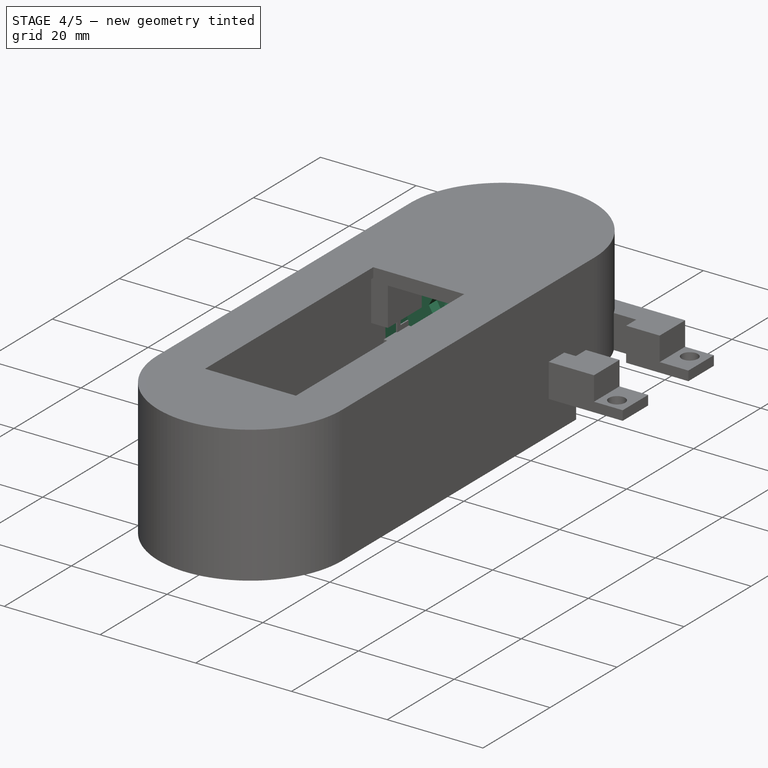
[diagram: stage 4 of 5 — iso view after this stage's code; geometry added in this stage tinted green]
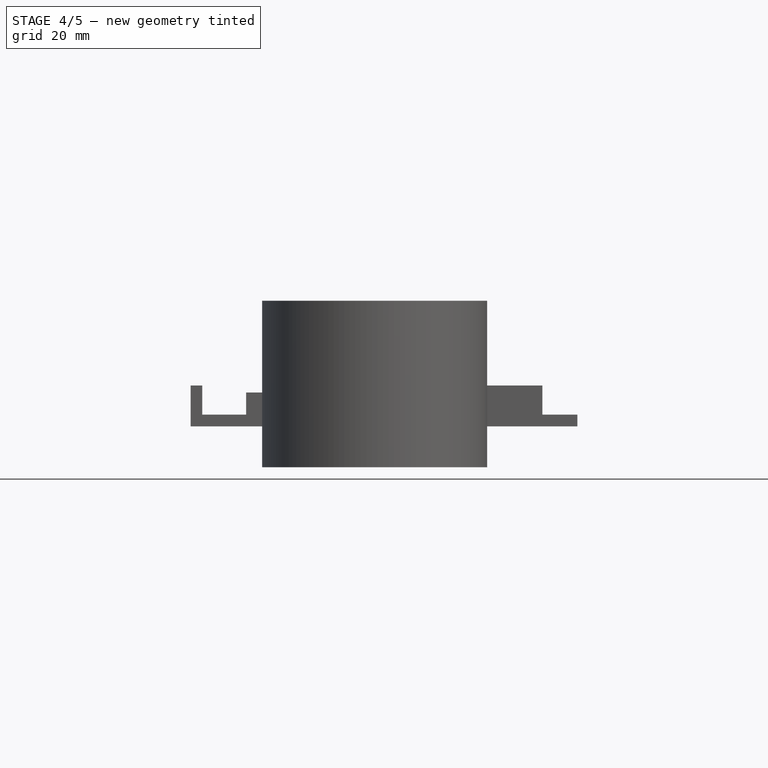
[diagram: stage 4 of 5 — front view after this stage's code; geometry added in this stage tinted green]
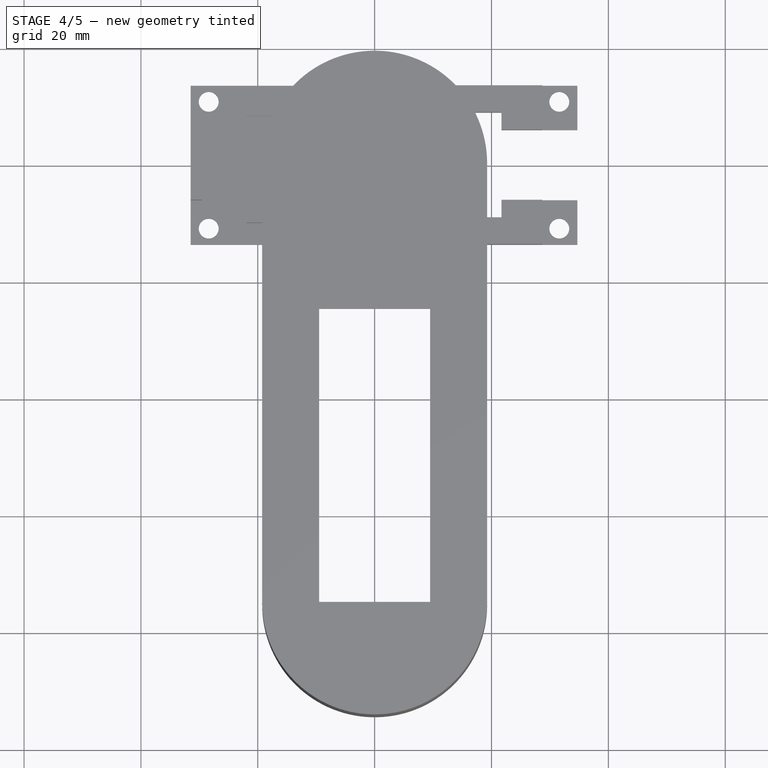
[diagram: stage 4 of 5 — top view after this stage's code; geometry added in this stage tinted green]
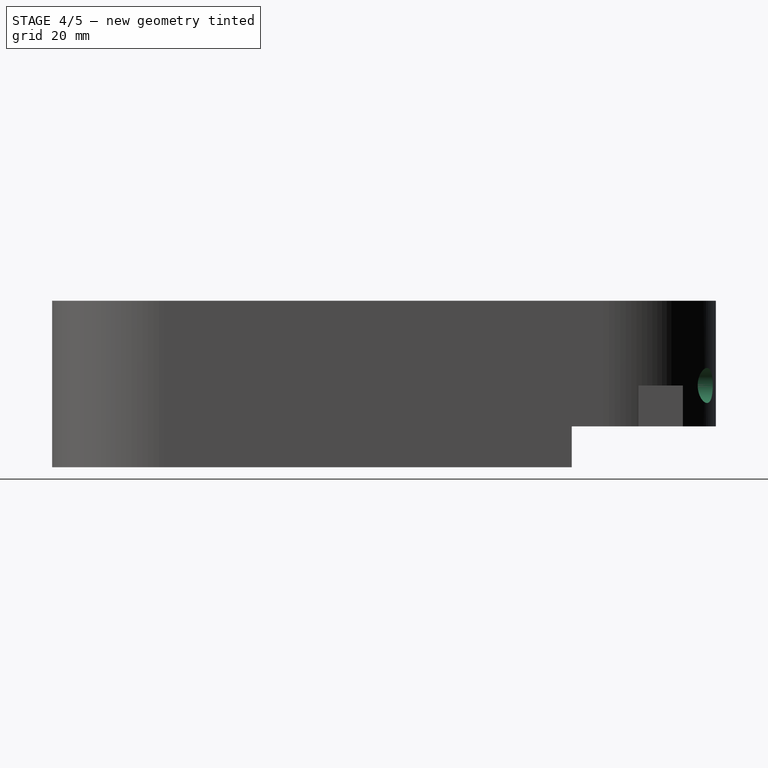
[diagram: stage 4 of 5 — right view after this stage's code; geometry added in this stage tinted green]
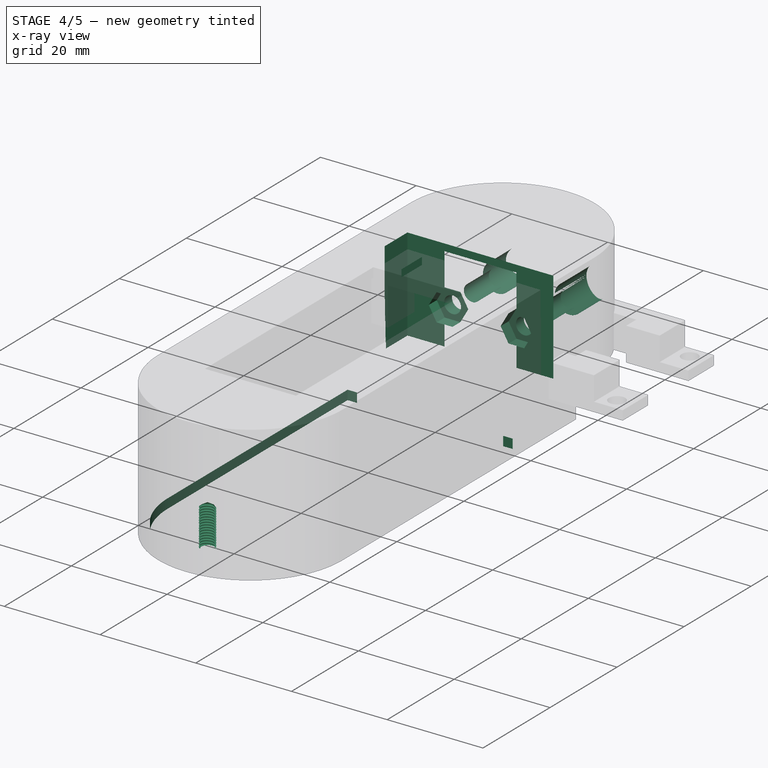
[diagram: stage 4 of 5 — x-ray composite at the iso view; earlier geometry ghosted, this stage's added geometry solid]
FEATURE [Sketcher::SketchObject] Sketch014
  ArcFitTolerance = 1e-06
  AttachmentSupport = -> [XY_Plane001]
  ExternalGeometry = -> [Pocket007]
  FullyConstrained = true
  MakeInternals = false
  MapMode = 5
  sketch-geometry (9):
    g0: LineSegment StartX=-15.25 StartY=-6.5 StartZ=0 EndX=-15.25 EndY=-13.3 EndZ=0
    g1: LineSegment StartX=-15.25 StartY=-13.3 StartZ=0 EndX=-7.5 EndY=-13.3 EndZ=0
    g2: LineSegment StartX=15.25 StartY=-13.3 StartZ=0 EndX=15.25 EndY=-6.5 EndZ=0
    g3: LineSegment StartX=15.25 StartY=-6.5 StartZ=0 EndX=-15.25 EndY=-6.5 EndZ=0
    g4: GeomPoint [constr] X=0 Y=-9.9 Z=0
    g5: LineSegment StartX=7.5 StartY=-13.3 StartZ=0 EndX=7.5 EndY=-19.3 EndZ=0
    g6: LineSegment StartX=7.5 StartY=-19.3 StartZ=0 EndX=-7.5 EndY=-19.3 EndZ=0
    g7: LineSegment StartX=-7.5 StartY=-19.3 StartZ=0 EndX=-7.5 EndY=-13.3 EndZ=0
    g8: LineSegment StartX=7.5 StartY=-13.3 StartZ=0 EndX=15.25 EndY=-13.3 EndZ=0
  constraints (23):
    c: Coincident(g0,g1)
    c: Coincident(g8,g2)
    c: Coincident(g2,g3)
    c: Coincident(g3,g0)
    c: Vertical(g0)
    c: Vertical(g2)
    c: Horizontal(g1)
    c: Horizontal(g3)
    c: Symmetric(g2,g0,g4)
    c: PointOnObject(g4,g-2)
    c: Coincident(g8,g-4)
    c: PointOnObject(g-3,g3)
    c: Coincident(g-4,g5)
    c: Vertical(g5)
    c: Coincident(g5,g6)
    c: Horizontal(g6)
    c: Coincident(g6,g7)
    c: Vertical(g7)
    c: Coincident(g7,g-5)
    c: DistanceY(g7,g7) = 6
    c: PointOnObject(g8,g5)
    c: Coincident(g1,g7)
    c: Horizontal(g8)
FEATURE [PartDesign::Pocket] Pocket008  label="HexCutoutPocket008"
  BaseFeature = -> Pocket007
  Direction = (0,0,-1)
  Length = 19.5
  Length2 = 5
  Placement = pos=(0,0,19.5) rot=(0,0,1;0rad)
  Profile = -> Sketch014
  ReferenceAxis = -> Sketch014 [N_Axis]
  Refine = true
  Reversed = true
  Suppressed = false
  Type = 0
  expr: Length = <<config>>.inner_height
FEATURE [PartDesign::Hole] Hole001  label="PlugMountHole001"
  BaseFeature = -> Pocket008
  CustomThreadClearance = 0
  Depth = 30
  DepthType = 0
  Diameter = 3.5
  DrillForDepth = false
  DrillPoint = 0
  DrillPointAngle = 118
  HoleCutCountersinkAngle = 90
  HoleCutCustomValues = false
  HoleCutDepth = 10
  HoleCutDiameter = 6
  HoleCutType = 1
  ModelThread = false
  Placement = pos=(0,0,19.5) rot=(0,0,1;0rad)
  Profile = -> Sketch011
  Refine = true
  Reversed = true
  Suppressed = false
  Tapered = false
  TaperedAngle = 90
  ThreadClass = 0
  ThreadDepth = 30
  ThreadDepthType = 0
  ThreadDirection = 0
  ThreadFit = 0
  ThreadSize = 0
  ThreadType = 0
  Threaded = false
  UseCustomThreadClearance = false
FEATURE [Sketcher::SketchObject] Sketch015
  ArcFitTolerance = 1e-06
  AttachmentSupport = -> [Hole001]
  ExternalGeometry = -> [Binder001]
  FullyConstrained = true
  MakeInternals = false
  MapMode = 5
  Placement = pos=(0,-6.5,19.5) rot=(1,0,0;1.5708rad)
  expr: Constraints[39] = 5.5 mm + 2 * 0.1 mm
  sketch-geometry (14):
    g0: LineSegment StartX=-4.2091 StartY=-12.5 StartZ=0 EndX=-5.85455 EndY=-9.65 EndZ=0
    g1: LineSegment StartX=-5.85455 StartY=-9.65 StartZ=0 EndX=-9.14545 EndY=-9.65 EndZ=0
    g2: LineSegment StartX=-9.14545 StartY=-9.65 StartZ=0 EndX=-10.7909 EndY=-12.5 EndZ=0
    g3: LineSegment StartX=-10.7909 StartY=-12.5 StartZ=0 EndX=-9.14545 EndY=-15.35 EndZ=0
    g4: LineSegment StartX=-9.14545 StartY=-15.35 StartZ=0 EndX=-5.85455 EndY=-15.35 EndZ=0
    g5: LineSegment StartX=-5.85455 StartY=-15.35 StartZ=0 EndX=-4.2091 EndY=-12.5 EndZ=0
    g6: Circle [constr] CenterX=-7.5 CenterY=-12.5 CenterZ=0 NormalX=0 NormalY=0 NormalZ=1 AngleXU=0 Radius=3.2909
    g7: LineSegment StartX=10.7909 StartY=-12.5 StartZ=0 EndX=9.14545 EndY=-9.65 EndZ=0
    g8: LineSegment StartX=9.14545 StartY=-9.65 StartZ=0 EndX=5.85455 EndY=-9.65 EndZ=0
    g9: LineSegment StartX=5.85455 StartY=-9.65 StartZ=0 EndX=4.2091 EndY=-12.5 EndZ=0
    g10: LineSegment StartX=4.2091 StartY=-12.5 StartZ=0 EndX=5.85455 EndY=-15.35 EndZ=0
    g11: LineSegment StartX=5.85455 StartY=-15.35 StartZ=0 EndX=9.14545 EndY=-15.35 EndZ=0
    g12: LineSegment StartX=9.14545 StartY=-15.35 StartZ=0 EndX=10.7909 EndY=-12.5 EndZ=0
    g13: Circle [constr] CenterX=7.5 CenterY=-12.5 CenterZ=0 NormalX=0 NormalY=0 NormalZ=1 AngleXU=0 Radius=3.2909
  constraints (32):
    c: Coincident(g0,g1)
    c: Coincident(g1,g2)
    c: Coincident(g2,g3)
    c: Coincident(g3,g4)
    c: Coincident(g4,g5)
    c: Coincident(g5,g0)
    c: Equal(g0, g1-g5) x5
    c: PointOnObject(g0,g6)
    c: PointOnObject(g1,g6)
    c: PointOnObject(g2,g6)
    c: PointOnObject(g3,g6)
    c: PointOnObject(g4,g6)
    c: PointOnObject(g5,g6)
    c: Coincident(g6,g-3)
    c: Coincident(g7,g8)
    c: Coincident(g8,g9)
    c: Coincident(g9,g10)
    c: Coincident(g10,g11)
    c: Coincident(g11,g12)
    c: Coincident(g12,g7)
    c: Equal(g7, g8-g12) x5
    c: PointOnObject(g7,g13)
    c: PointOnObject(g8,g13)
    c: PointOnObject(g9,g13)
    c: PointOnObject(g10,g13)
    c: PointOnObject(g11,g13)
    c: PointOnObject(g12,g13)
    c: Coincident(g13,g-4)
    c: Horizontal(g4)
    c: Horizontal(g11)
    c: Equal(g1,g8)
    c: DistanceY(g3,g1) = 5.7
FEATURE [PartDesign::Pocket] Pocket009  label="M3NutPocket009"
  BaseFeature = -> Hole001
  Direction = (0,1,-2e-16)
  Length = 2.4
  Length2 = 5
  Placement = pos=(0,0,19.5) rot=(0,0,1;0rad)
  Profile = -> Sketch015
  ReferenceAxis = -> Sketch015 [N_Axis]
  Refine = true
  Suppressed = false
  Type = 0
  expr: Length = 2.4
FEATURE [PartDesign::Plane] DatumPlane003  label="BottomDatumPlane003"
  AttachmentOffset = pos=(0,0,-7) rot=(0,0,1;0rad)
  AttachmentSupport = -> [XY_Plane001]
  Length = 60
  MapMode = 5
  Placement = pos=(0,0,-7) rot=(0,0,1;0rad)
  ResizeMode = 0
  Width = 60
  expr: .AttachmentOffset.Base.z = -<<config>>.extra_height
FEATURE [Sketcher::SketchObject] Sketch016  label="CoverSketch016"
  ArcFitTolerance = 1e-06
  AttachmentSupport = -> [DatumPlane003]
  ExternalGeometry = -> [Pocket009]
  FullyConstrained = true
  MakeInternals = false
  MapMode = 5
  Placement = pos=(0,0,-7) rot=(0,0,1;0rad)
  expr: Constraints[10] = <<config>>.wall_thickness / 2
  expr: Constraints[17] = <<config>>.cover_thickness + 0.25 mm
  sketch-geometry (7):
    g0: Circle [constr] CenterX=0 CenterY=0 CenterZ=0 NormalX=0 NormalY=0 NormalZ=1 AngleXU=0 Radius=19.25
    g1: LineSegment [constr] StartX=19.25 StartY=-75.1 StartZ=0 EndX=-19.25 EndY=-75.1 EndZ=0
    g2: ArcOfCircle CenterX=-3e-16 CenterY=-75.1 CenterZ=0 NormalX=0 NormalY=0 NormalZ=1 AngleXU=0 Radius=17.25 StartAngle=3.14159 EndAngle=6.28319
    g3: LineSegment StartX=17.25 StartY=-75.1 StartZ=0 EndX=17.25 EndY=-21.5 EndZ=0
    g4: LineSegment StartX=-17.25 StartY=-75.1 StartZ=0 EndX=-17.25 EndY=-21.5 EndZ=0
    g5: LineSegment StartX=-17.25 StartY=-21.5 StartZ=0 EndX=17.25 EndY=-21.5 EndZ=0
    g6: GeomPoint X=0 Y=-19.25 Z=0
  constraints (18):
    c: Coincident(g0,g-1)
    c: Coincident(g1,g-4)
    c: Coincident(g1,g-4)
    c: Coincident(g2,g-4)
    c: PointOnObject(g2,g1)
    c: PointOnObject(g2,g1)
    c: Coincident(g3,g2)
    c: Vertical(g3)
    c: Coincident(g4,g2)
    c: Vertical(g4)
    c: DistanceX(g2,g1) = 2
    c: Tangent(g0,g-3)
    c: Coincident(g5,g4)
    c: Horizontal(g5)
    c: Coincident(g5,g3)
    c: PointOnObject(g6,g0)
    c: PointOnObject(g6,g-2)
    c: DistanceY(g3,g6) = 2.25
FEATURE [PartDesign::Pocket] Pocket010  label="CoverCutoutPocket010"
  BaseFeature = -> Pocket009
  Direction = (0,0,-1)
  Length = 2
  Length2 = 5
  Placement = pos=(0,0,19.5) rot=(0,0,1;0rad)
  Profile = -> Sketch016
  ReferenceAxis = -> Sketch016 [N_Axis]
  Refine = true
  Reversed = true
  Suppressed = false
  Type = 0
  expr: Length = <<config>>.cover_thickness
FEATURE [Sketcher::SketchObject] Sketch017  label="CoverHoleSketch017"
  ArcFitTolerance = 1e-06
  AttachmentSupport = -> [DatumPlane003]
  ExternalGeometry = -> [Pocket010]
  FullyConstrained = true
  MakeInternals = false
  MapMode = 5
  Placement = pos=(0,0,-7) rot=(0,0,1;0rad)
  sketch-geometry (2):
    g0: Circle CenterX=0 CenterY=-87.925 CenterZ=0 NormalX=0 NormalY=0 NormalZ=1 AngleXU=0 Radius=1.5
    g1: LineSegment [constr] StartX=0 StartY=-83.5 StartZ=0 EndX=0 EndY=-92.35 EndZ=0
  constraints (6):
    c: PointOnObject(g0,g-2)
    c: Diameter(g0) = 3
    c: PointOnObject(g1,g-3)
    c: PointOnObject(g1,g-4)
    c: Vertical(g1)
    c: Symmetric(g1,g1,g0)
FEATURE [PartDesign::Hole] Hole002  label="CoverHole002"
  BaseFeature = -> Pocket010
  CustomThreadClearance = 0
  Depth = 10
  DepthType = 0
  Diameter = 2.52
  DrillForDepth = false
  DrillPoint = 1
  DrillPointAngle = 118
  HoleCutCountersinkAngle = 90
  HoleCutCustomValues = false
  HoleCutDepth = 0
  HoleCutDiameter = 6.1
  HoleCutType = 0
  ModelThread = true
  Placement = pos=(0,0,19.5) rot=(0,0,1;0rad)
  Profile = -> Sketch017
  Refine = true
  Reversed = true
  Suppressed = false
  Tapered = false
  TaperedAngle = 90
  ThreadClass = 0
  ThreadDepth = 10
  ThreadDepthType = 0
  ThreadDirection = 0
  ThreadFit = 0
  ThreadSize = 9
  ThreadType = 1
  Threaded = true
  UseCustomThreadClearance = false
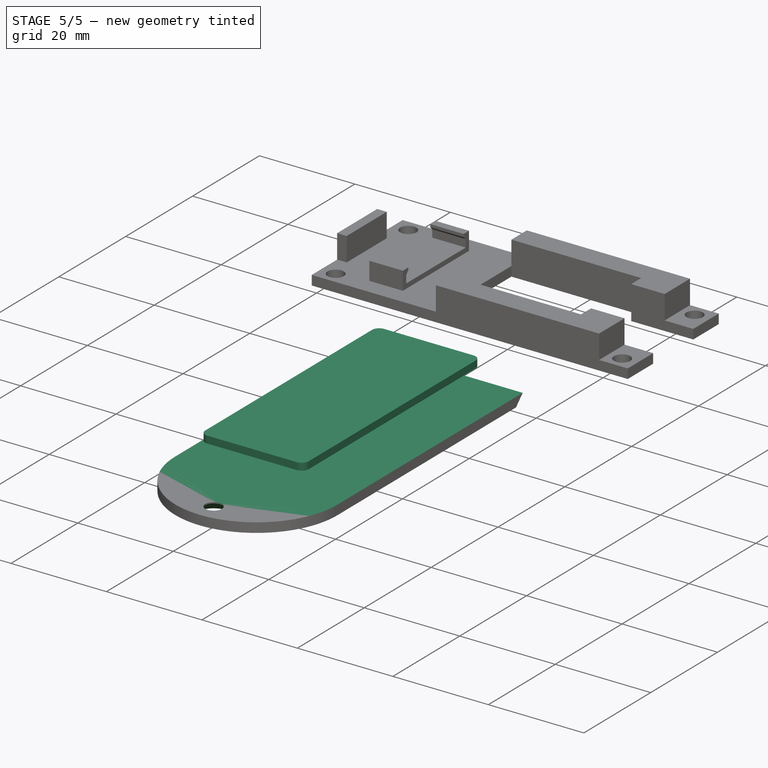
[diagram: stage 5 of 5 — iso view after this stage's code; geometry added in this stage tinted green]
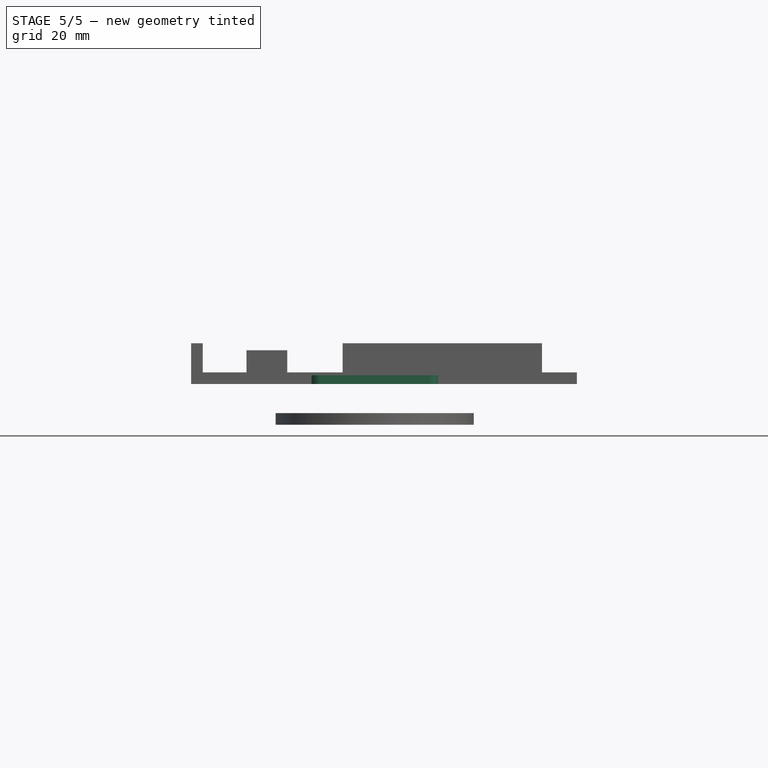
[diagram: stage 5 of 5 — front view after this stage's code; geometry added in this stage tinted green]
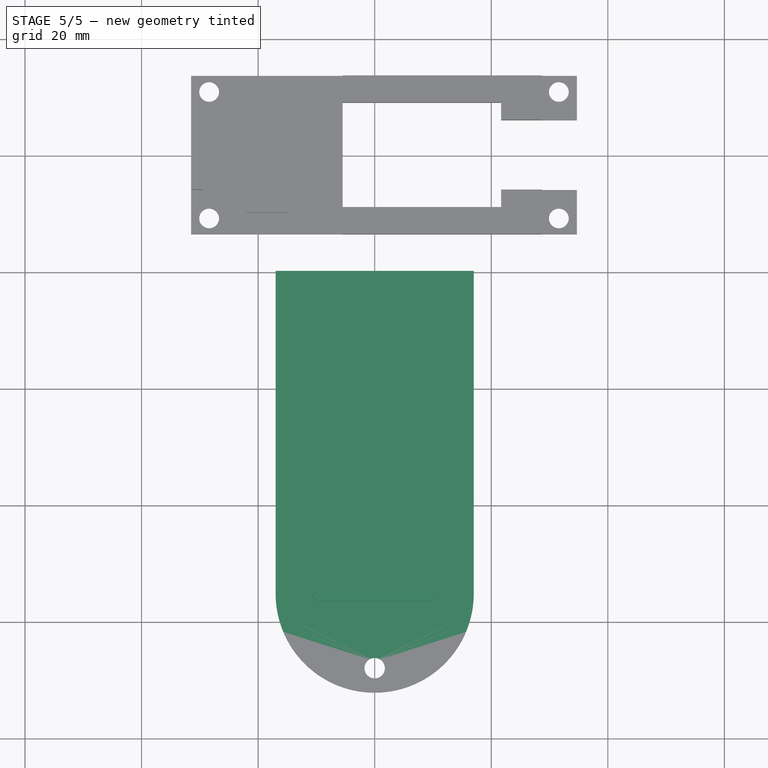
[diagram: stage 5 of 5 — top view after this stage's code; geometry added in this stage tinted green]
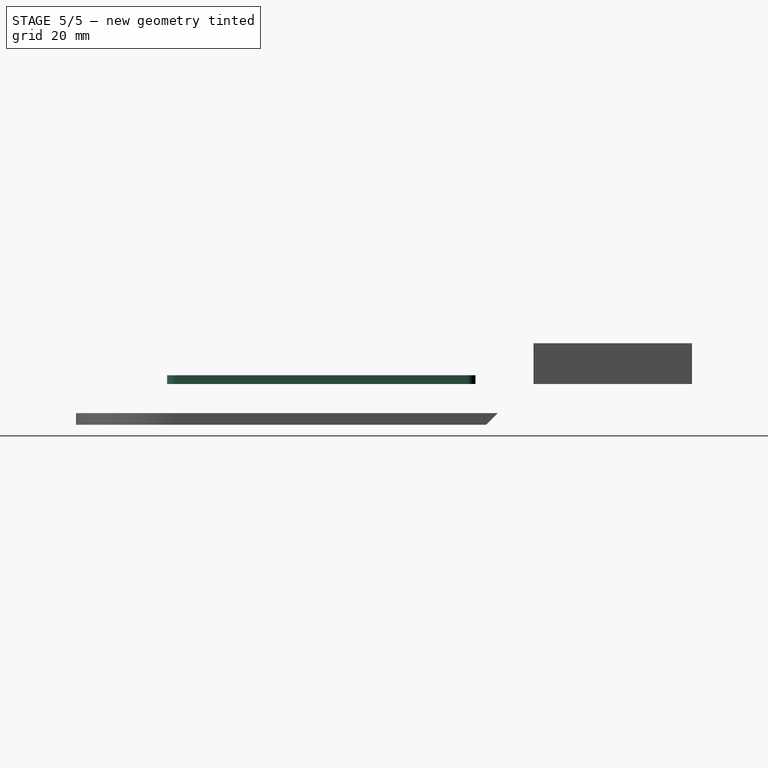
[diagram: stage 5 of 5 — right view after this stage's code; geometry added in this stage tinted green]
FEATURE [Sketcher::SketchObject] Sketch018  label="CoverLidSketch018"
  ArcFitTolerance = 1e-06
  AttachmentSupport = -> [YZ_Plane001]
  ExternalGeometry = -> [Hole002]
  FullyConstrained = true
  MakeInternals = false
  MapMode = 5
  Placement = pos=(0,0,0) rot=(0.57735,0.57735,0.57735;2.0944rad)
  sketch-geometry (5):
    g0: LineSegment StartX=-21.5 StartY=-7 StartZ=0 EndX=-19.5 EndY=-5 EndZ=0
    g1: LineSegment StartX=-21.5 StartY=-7 StartZ=0 EndX=-23.5 EndY=-5 EndZ=0
    g2: LineSegment StartX=-23.5 StartY=-5 StartZ=0 EndX=-21.5 EndY=-5 EndZ=0
    g3: LineSegment StartX=-21.5 StartY=-5 StartZ=0 EndX=-19.5 EndY=-5 EndZ=0
    g4: LineSegment [constr] StartX=-21.5 StartY=-5 StartZ=0 EndX=-21.5 EndY=-7 EndZ=0
  constraints (12):
    c: Coincident(g-4,g0)
    c: Coincident(g1,g0)
    c: PointOnObject(g1,g-3)
    c: Coincident(g2,g1)
    c: Coincident(g3,g0)
    c: Symmetric(g1,g0,g-4)
    c: Coincident(g2,g3)
    c: Equal(g2,g3)
    c: Coincident(g4,g2)
    c: Coincident(g4,g0)
    c: Equal(g4,g3)
    c: Horizontal(g2)
FEATURE [PartDesign::Pocket] Pocket011  label="CoverLidPocket011"
  BaseFeature = -> Hole002
  Direction = (-1,0,0)
  Length = 34.5
  Length2 = 5
  Midplane = true
  Placement = pos=(0,0,19.5) rot=(0,0,1;0rad)
  Profile = -> Sketch018
  ReferenceAxis = -> Sketch018 [N_Axis]
  Refine = true
  Suppressed = false
  Type = 0
  expr: Length = <<config>>.plug_diam - <<config>>.wall_thickness
FEATURE [PartDesign::SubShapeBinder] Binder002  label="CoverHoleBinder002"
  BindCopyOnChange = 0
  BindMode = 0
  ClaimChildren = false
  Context = -> Body002 [Binder002.]
  Fuse = false
  MakeFace = true
  OffsetFill = false
  OffsetIntersection = false
  OffsetJoinType = 0
  OffsetOpenResult = false
  PartialLoad = false
  Refine = true
  Relative = true
  Support = -> [Body001[Sketch017.]]
  _Version = 2
FEATURE [PartDesign::SubShapeBinder] Binder003  label="CoverSketchBinder003"
  BindCopyOnChange = 0
  BindMode = 0
  ClaimChildren = false
  Context = -> Body002 [Binder003.]
  Fuse = false
  MakeFace = true
  OffsetFill = false
  OffsetIntersection = false
  OffsetJoinType = 0
  OffsetOpenResult = false
  PartialLoad = false
  Refine = true
  Relative = true
  Support = -> [Body001[Sketch016.]]
  _Version = 2
FEATURE [Sketcher::SketchObject] Sketch019
  ArcFitTolerance = 1e-06
  AttachmentSupport = -> [Binder003]
  ExternalGeometry = -> [Binder003]
  FullyConstrained = true
  MakeInternals = false
  MapMode = 5
  Placement = pos=(0,0,-7) rot=(0,0,1;0rad)
  sketch-geometry (5):
    g0: LineSegment [constr] StartX=-17 StartY=-75.1 StartZ=0 EndX=17 EndY=-75.1 EndZ=0
    g1: ArcOfCircle CenterX=-3e-16 CenterY=-75.1 CenterZ=0 NormalX=0 NormalY=0 NormalZ=1 AngleXU=0 Radius=17 StartAngle=3.14159 EndAngle=6.28319
    g2: LineSegment StartX=-17 StartY=-75.1 StartZ=0 EndX=-17 EndY=-21.75 EndZ=0
    g3: LineSegment StartX=17 StartY=-21.75 StartZ=0 EndX=17 EndY=-75.1 EndZ=0
    g4: LineSegment StartX=-17 StartY=-21.75 StartZ=0 EndX=17 EndY=-21.75 EndZ=0
  constraints (14):
    c: Horizontal(g0)
    c: PointOnObject(g-3,g0)
    c: Coincident(g1,g-3)
    c: Coincident(g1,g0)
    c: Coincident(g1,g0)
    c: DistanceX(g0,g-3) = 0.25
    c: Coincident(g0,g2)
    c: Vertical(g2)
    c: Coincident(g3,g0)
    c: Vertical(g3)
    c: Coincident(g4,g2)
    c: Coincident(g4,g3)
    c: Horizontal(g4)
    c: DistanceY(g3,g-4) = 0.25
FEATURE [PartDesign::Pad] Pad002
  Direction = (0,0,1)
  Length = 2
  Length2 = 10
  Profile = -> Sketch019
  ReferenceAxis = -> Sketch019 [N_Axis]
  Refine = true
  Suppressed = false
  Type = 0
  expr: Length = <<config>>.cover_thickness
FEATURE [Sketcher::SketchObject] Sketch020
  ArcFitTolerance = 1e-06
  AttachmentSupport = -> [Pad002]
  ExternalGeometry = -> [Pad002]
  FullyConstrained = true
  MakeInternals = false
  MapMode = 5
  Placement = pos=(-17,0,0) rot=(0.57735,-0.57735,-0.57735;2.0944rad)
  sketch-geometry (3):
    g0: LineSegment StartX=21.75 StartY=-7 StartZ=0 EndX=21.75 EndY=-5 EndZ=0
    g1: LineSegment StartX=21.75 StartY=-5 StartZ=0 EndX=19.75 EndY=-5 EndZ=0
    g2: LineSegment StartX=19.75 StartY=-5 StartZ=0 EndX=21.75 EndY=-7 EndZ=0
  constraints (7):
    c: Coincident(g-3,g0)
    c: Coincident(g0,g-3)
    c: Coincident(g0,g1)
    c: Horizontal(g1)
    c: Coincident(g1,g2)
    c: Coincident(g2,g0)
    c: Equal(g0,g1)
FEATURE [PartDesign::Pad] Pad003
  BaseFeature = -> Pad002
  Direction = (-1,0,0)
  Length = 10
  Length2 = 10
  Profile = -> Sketch020
  ReferenceAxis = -> Sketch020 [N_Axis]
  Refine = true
  Reversed = true
  Suppressed = false
  Type = 3
  UpToFace = -> Pad002 [Face2]
FEATURE [PartDesign::Hole] Hole003
  BaseFeature = -> Pad003
  CustomThreadClearance = 0
  Depth = 25
  DepthType = 0
  Diameter = 3.5
  DrillForDepth = false
  DrillPoint = 1
  DrillPointAngle = 118
  HoleCutCountersinkAngle = 90
  HoleCutCustomValues = false
  HoleCutDepth = 0
  HoleCutDiameter = 7
  HoleCutType = 2
  ModelThread = false
  Profile = -> Binder002
  Refine = true
  Reversed = true
  Suppressed = false
  Tapered = false
  TaperedAngle = 90
  ThreadClass = 0
  ThreadDepth = 25
  ThreadDepthType = 0
  ThreadDirection = 0
  ThreadFit = 0
  ThreadSize = 0
  ThreadType = 0
  Threaded = false
  UseCustomThreadClearance = false
FEATURE [PartDesign::Body] Body002  label="CoverLidBody"
  AllowCompound = false
  Group = -> [Binder002,Binder003,Sketch019,Pad002,Sketch020,Pad003,Hole003]
  Origin = -> Origin002
  Tip = -> Hole003
FEATURE [PartDesign::Chamfer] Chamfer001
  Angle = 45
  Base = -> Pocket011 [Face6,Edge33,Edge3,Edge34]
  BaseFeature = -> Pocket011
  ChamferType = 0
  FlipDirection = false
  Placement = pos=(0,0,19.5) rot=(0,0,1;0rad)
  Refine = true
  Size = 1
  Size2 = 1
  SupportTransform = false
  Suppressed = false
  UseAllEdges = false
FEATURE [PartDesign::Body] Body001  label="WallPlugBody"
  AllowCompound = false
  Group = -> [DatumPlane,Binder,Sketch004,Pad001,Sketch006,DatumPlane001,Sketch007,Pocket002,Pocket003,Sketch008,Hole,Sketch009,Pocket004,Sketch010,Pocket005,DatumPlane002,Sketch011,Binder001,Sketch012,Pocket006,Sketch013,Pocket007,Sketch014,Pocket008,Hole001,Sketch015,Pocket009,DatumPlane003,Sketch016,Pocket010,Sketch017,Hole002,Sketch018,Pocket011,Chamfer001]
  Origin = -> Origin001
  Tip = -> Chamfer001
FEATURE [PartDesign::SubShapeBinder] Binder004
  BindCopyOnChange = 0
  BindMode = 0
  ClaimChildren = false
  Context = -> Body003 [Binder004.]
  Fuse = false
  MakeFace = true
  OffsetFill = false
  OffsetIntersection = false
  OffsetJoinType = 0
  OffsetOpenResult = false
  PartialLoad = false
  Refine = true
  Relative = true
  Support = -> [Body001[Sketch006.]]
  _Version = 2
FEATURE [Sketcher::SketchObject] Sketch021  label="AcrylSketch"
  ArcFitTolerance = 1e-06
  AttachmentSupport = -> [XY_Plane003]
  ExternalGeometry = -> [Binder004]
  FullyConstrained = true
  MakeInternals = false
  MapMode = 5
  expr: Constraints[28] = <<config>>.acryl_overlap
  expr: Constraints[7] = .Constraints.clearance
  expr: Constraints[8] = .Constraints.clearance
  sketch-geometry (13):
    g0: LineSegment StartX=-10.85 StartY=-25.05 StartZ=0 EndX=-10.85 EndY=-74.95 EndZ=0
    g1: LineSegment StartX=-9.35 StartY=-76.45 StartZ=0 EndX=9.35 EndY=-76.45 EndZ=0
    g2: LineSegment StartX=10.85 StartY=-74.95 StartZ=0 EndX=10.85 EndY=-25.05 EndZ=0
    g3: LineSegment StartX=9.35 StartY=-23.55 StartZ=0 EndX=-9.35 EndY=-23.55 EndZ=0
    g4: GeomPoint [constr] X=0 Y=-50 Z=0
    g5: ArcOfCircle CenterX=9.35 CenterY=-74.95 CenterZ=0 NormalX=0 NormalY=0 NormalZ=1 AngleXU=0 Radius=1.5 StartAngle=4.71239 EndAngle=6.28319
    g6: GeomPoint [constr] X=10.85 Y=-76.45 Z=0
    g7: ArcOfCircle CenterX=9.35 CenterY=-25.05 CenterZ=0 NormalX=0 NormalY=0 NormalZ=1 AngleXU=0 Radius=1.5 StartAngle=1e-16 EndAngle=1.5708
    g8: GeomPoint [constr] X=10.85 Y=-23.55 Z=0
    g9: ArcOfCircle CenterX=-9.35 CenterY=-25.05 CenterZ=0 NormalX=0 NormalY=0 NormalZ=1 AngleXU=0 Radius=1.5 StartAngle=1.5708 EndAngle=3.14159
    g10: GeomPoint [constr] X=-10.85 Y=-23.55 Z=0
    g11: ArcOfCircle CenterX=-9.35 CenterY=-74.95 CenterZ=0 NormalX=0 NormalY=0 NormalZ=1 AngleXU=0 Radius=1.5 StartAngle=3.14159 EndAngle=4.71239
    g12: GeomPoint [constr] X=-10.85 Y=-76.45 Z=0
  constraints (29):
    c: Vertical(g0)
    c: Vertical(g2)
    c: Horizontal(g1)
    c: Horizontal(g3)
    c: Symmetric(g6,g10,g4)
    c: PointOnObject(g4,g-2)
    c: DistanceY(g8,g-3) = 0.15  'clearance'
    c: DistanceY(g-4,g6) = 0.15
    c: DistanceX(g6,g-4) = 0.15
    c: PointOnObject(g6,g1)
    c: PointOnObject(g6,g2)
    c: Tangent(g1,g5) = -1.5708
    c: Tangent(g2,g5) = -1.5708
    c: PointOnObject(g8,g3)
    c: PointOnObject(g8,g2)
    c: Tangent(g3,g7) = -1.5708
    c: Tangent(g2,g7) = -1.5708
    c: PointOnObject(g10,g3)
    c: PointOnObject(g10,g0)
    c: Tangent(g3,g9) = -1.5708
    c: Tangent(g0,g9) = -1.5708
    c: PointOnObject(g12,g0)
    c: PointOnObject(g12,g1)
    c: Tangent(g0,g11) = -1.5708
    c: Tangent(g1,g11) = -1.5708
    c: Equal(g9,g7)
    c: Equal(g9,g5)
    c: Equal(g9,g11)
    c: Radius(g9) = 1.5
FEATURE [PartDesign::Pad] Pad004
  Direction = (0,0,1)
  Length = 1.5
  Length2 = 10
  Profile = -> Sketch021
  ReferenceAxis = -> Sketch021 [N_Axis]
  Refine = true
  Suppressed = false
  Type = 0
  expr: Length = <<config>>.acryl_thickness
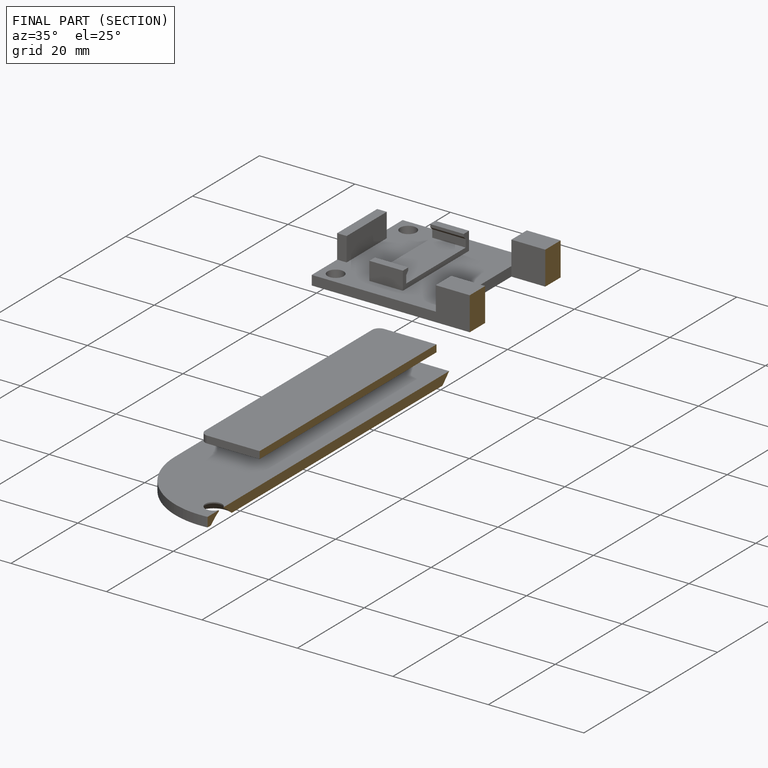
[diagram: finished part — half-section view (interior)]
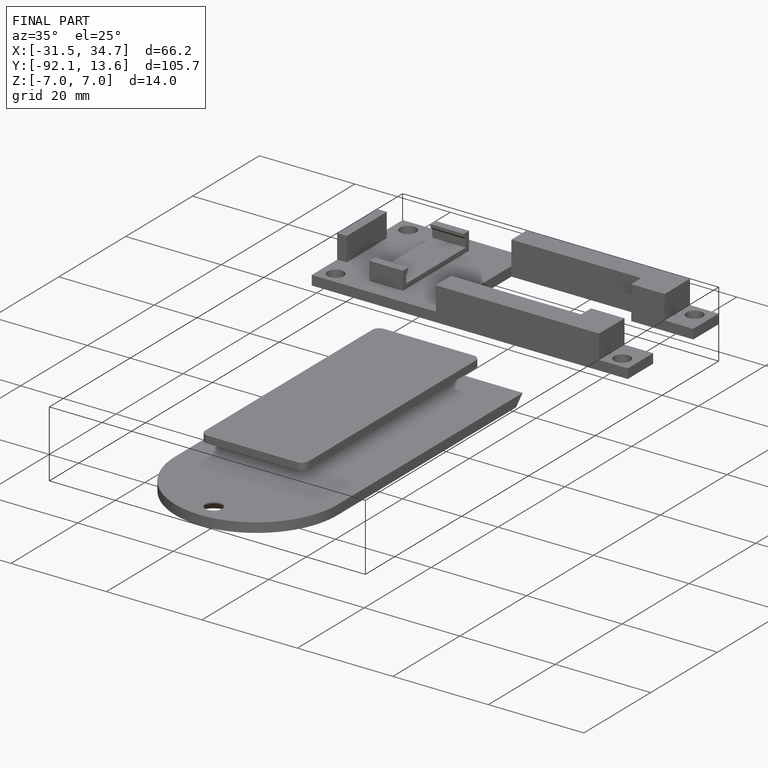
[diagram: finished part — iso view with bounding-box wireframe]
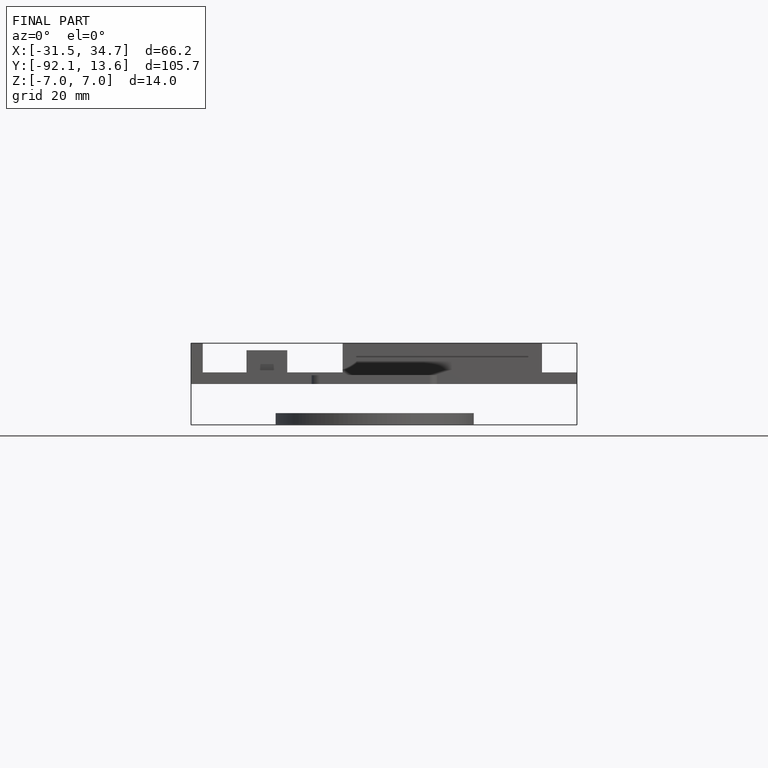
[diagram: finished part — front view with bounding-box wireframe]
